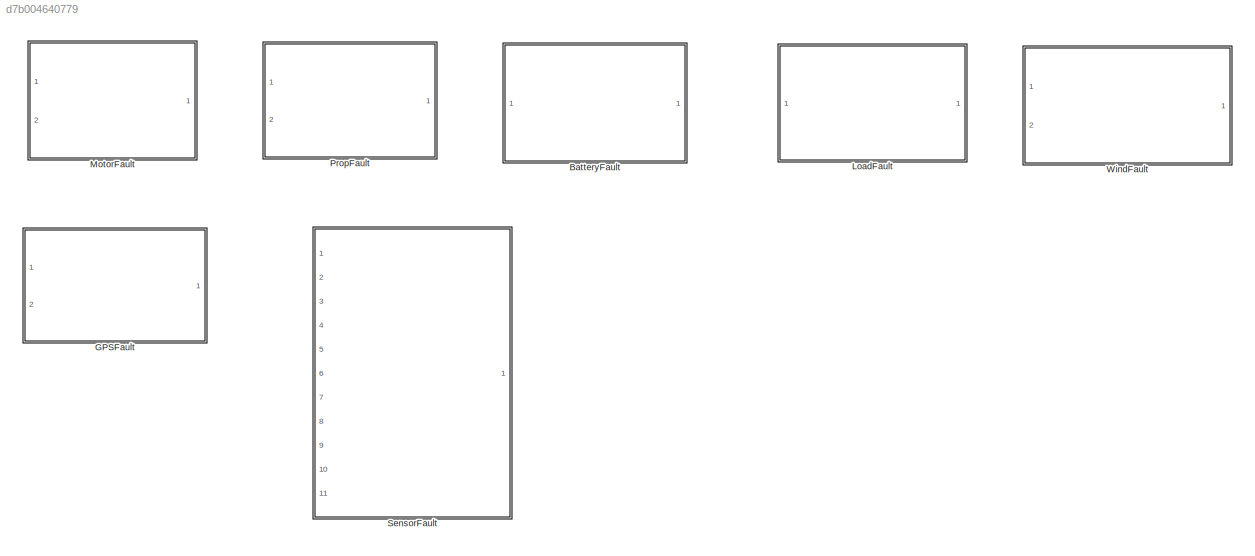
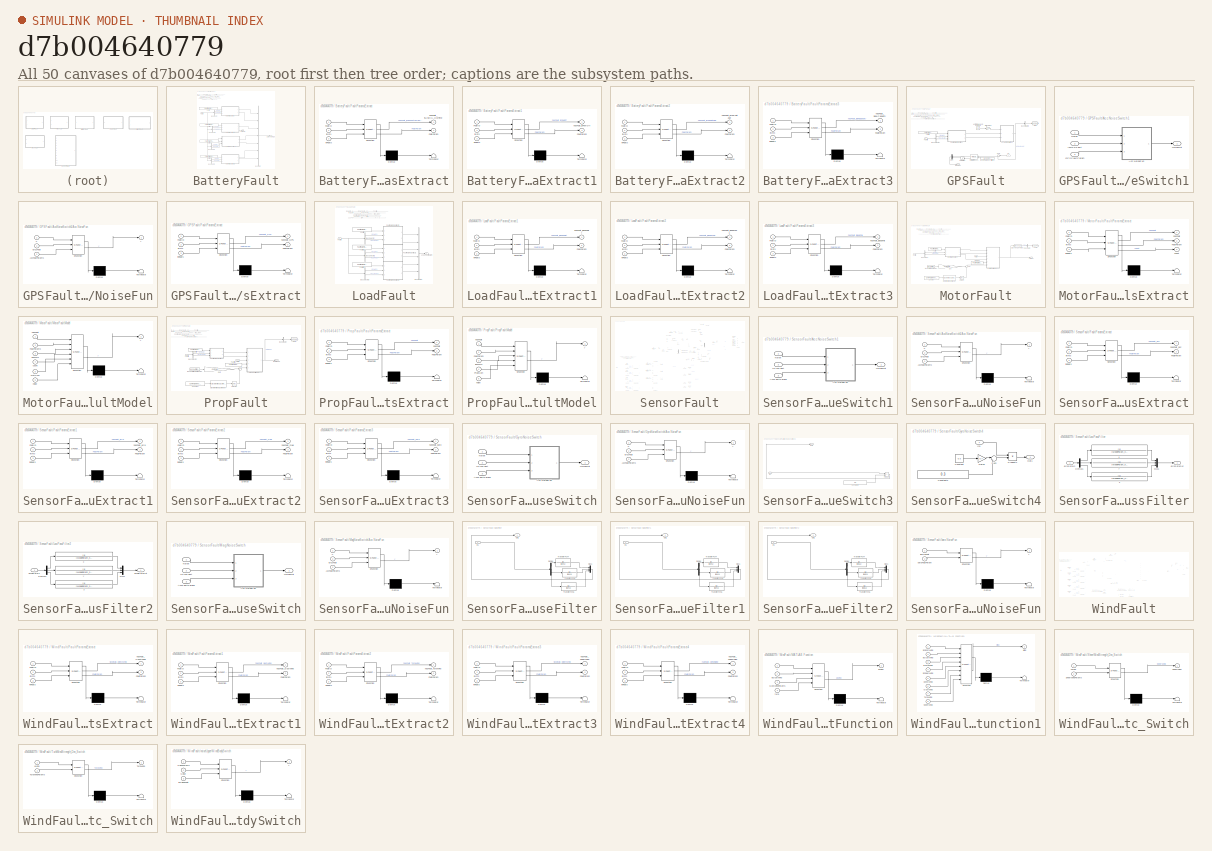
[diagram: thumbnail index - all 50 canvases of the model, root first then tree order]
MODEL slx_d7b004640779
KIND library
CONFIG AbsTol = auto
CONFIG EnableMultiTasking = off
CONFIG FixedStep = auto
CONFIG MaxStep = auto
CONFIG MinStep = auto
CONFIG RelTol = 1e-3
CONFIG SampleTimeConstraint = Unconstrained
CONFIG SolverName = VariableStepAuto
CONFIG StartTime = 0.0
CONFIG StopTime = 10.0
BLOCK [SubSystem] BatteryFault
  Ports = [1, 1]
  RequestExecContextInheritance = off
BLOCK [Outport] BatteryFault/BatteryFaultParam
BLOCK [BusCreator] BatteryFault/Bus Creator
  DisplayOption = bar
  InheritFromInputs = on
  Inputs = 7
  Ports = [7, 1]
BLOCK [BusSelector] BatteryFault/Bus Selector
  OutputSignals = inSILInts,inSILFloats
  Ports = [1, 2]
BLOCK [BusSelector] BatteryFault/Bus Selector1
  OutputSignals = inSILInts,inSILFloats
  Ports = [1, 2]
BLOCK [BusSelector] BatteryFault/Bus Selector2
  OutputSignals = inSILInts,inSILFloats
  Ports = [1, 2]
BLOCK [BusSelector] BatteryFault/Bus Selector3
  OutputSignals = inSILInts,inSILFloats
  Ports = [1, 2]
BLOCK [Constant] BatteryFault/FaultID
  OutDataTypeStr = int32
  Value = FaultParamStruct.UseCusTomHoverTimeFaultID
BLOCK [Constant] BatteryFault/FaultID1
  OutDataTypeStr = int32
  Value = FaultParamStruct.PowOffFaultID
BLOCK [Constant] BatteryFault/FaultID2
  OutDataTypeStr = int32
  Value = FaultParamStruct.LowVoltageFaultID
BLOCK [Constant] BatteryFault/FaultID3
  OutDataTypeStr = int32
  Value = FaultParamStruct.LowCapacityFaultID
BLOCK [Inport] BatteryFault/FaultIn
BLOCK [SubSystem] BatteryFault/FaultParamsExtract
  ErrorFcn = Stateflow.Translate.translate
  PermitHierarchicalResolution = ExplicitOnly
  Ports = [3, 2]
  RequestExecContextInheritance = off
  SFBlockType = MATLAB Function
  TreatAsAtomicUnit = on
BLOCK [Demux] BatteryFault/FaultParamsExtract/ Demux 
  Outputs = 1
  Ports = [1, 1]
BLOCK [S-Function] BatteryFault/FaultParamsExtract/ SFunction 
  EnableBusSupport = off
  FunctionName = sf_sfun
  PortCounts = [3 3]
  Ports = [3, 3]
  SFcnIsStateOwnerBlock = off
  SFunctionDeploymentMode = off
  Tag = Stateflow S-Function QuadModelLib2017b 4
BLOCK [Terminator] BatteryFault/FaultParamsExtract/ Terminator 
BLOCK [Inport] BatteryFault/FaultParamsExtract/FaultID
BLOCK [Outport] BatteryFault/FaultParamsExtract/FaultParam
  Port = 2
  VectorParamsAs1DForOutWhenUnconnected = off
BLOCK [Outport] BatteryFault/FaultParamsExtract/hasFault_isUseCustomHovTime
  VectorParamsAs1DForOutWhenUnconnected = off
BLOCK [Inport] BatteryFault/FaultParamsExtract/inFloats
  Port = 3
BLOCK [Inport] BatteryFault/FaultParamsExtract/inInts
  Port = 2
BLOCK [SubSystem] BatteryFault/FaultParamsExtract1
  ErrorFcn = Stateflow.Translate.translate
  PermitHierarchicalResolution = ExplicitOnly
  Ports = [3, 2]
  RequestExecContextInheritance = off
  SFBlockType = MATLAB Function
  TreatAsAtomicUnit = on
BLOCK [Demux] BatteryFault/FaultParamsExtract1/ Demux 
  Outputs = 1
  Ports = [1, 1]
BLOCK [S-Function] BatteryFault/FaultParamsExtract1/ SFunction 
  EnableBusSupport = off
  FunctionName = sf_sfun
  PortCounts = [3 3]
  Ports = [3, 3]
  SFcnIsStateOwnerBlock = off
  SFunctionDeploymentMode = off
  Tag = Stateflow S-Function QuadModelLib2017b 35
BLOCK [Terminator] BatteryFault/FaultParamsExtract1/ Terminator 
BLOCK [Inport] BatteryFault/FaultParamsExtract1/FaultID
BLOCK [Outport] BatteryFault/FaultParamsExtract1/FaultParam
  Port = 2
  VectorParamsAs1DForOutWhenUnconnected = off
BLOCK [Outport] BatteryFault/FaultParamsExtract1/hasFault_isPowOff
  VectorParamsAs1DForOutWhenUnconnected = off
BLOCK [Inport] BatteryFault/FaultParamsExtract1/inFloats
  Port = 3
BLOCK [Inport] BatteryFault/FaultParamsExtract1/inInts
  Port = 2
BLOCK [SubSystem] BatteryFault/FaultParamsExtract2
  ErrorFcn = Stateflow.Translate.translate
  PermitHierarchicalResolution = ExplicitOnly
  Ports = [3, 2]
  RequestExecContextInheritance = off
  SFBlockType = MATLAB Function
  TreatAsAtomicUnit = on
BLOCK [Demux] BatteryFault/FaultParamsExtract2/ Demux 
  Outputs = 1
  Ports = [1, 1]
BLOCK [S-Function] BatteryFault/FaultParamsExtract2/ SFunction 
  EnableBusSupport = off
  FunctionName = sf_sfun
  PortCounts = [3 3]
  Ports = [3, 3]
  SFcnIsStateOwnerBlock = off
  SFunctionDeploymentMode = off
  Tag = Stateflow S-Function QuadModelLib2017b 54
BLOCK [Terminator] BatteryFault/FaultParamsExtract2/ Terminator 
BLOCK [Inport] BatteryFault/FaultParamsExtract2/FaultID
BLOCK [Outport] BatteryFault/FaultParamsExtract2/FaultParam
  Port = 2
  VectorParamsAs1DForOutWhenUnconnected = off
BLOCK [Outport] BatteryFault/FaultParamsExtract2/hasFault_isLowVoltage
  VectorParamsAs1DForOutWhenUnconnected = off
BLOCK [Inport] BatteryFault/FaultParamsExtract2/inFloats
  Port = 3
BLOCK [Inport] BatteryFault/FaultParamsExtract2/inInts
  Port = 2
BLOCK [SubSystem] BatteryFault/FaultParamsExtract3
  ErrorFcn = Stateflow.Translate.translate
  PermitHierarchicalResolution = ExplicitOnly
  Ports = [3, 2]
  RequestExecContextInheritance = off
  SFBlockType = MATLAB Function
  TreatAsAtomicUnit = on
BLOCK [Demux] BatteryFault/FaultParamsExtract3/ Demux 
  Outputs = 1
  Ports = [1, 1]
BLOCK [S-Function] BatteryFault/FaultParamsExtract3/ SFunction 
  EnableBusSupport = off
  FunctionName = sf_sfun
  PortCounts = [3 3]
  Ports = [3, 3]
  SFcnIsStateOwnerBlock = off
  SFunctionDeploymentMode = off
  Tag = Stateflow S-Function QuadModelLib2017b 55
BLOCK [Terminator] BatteryFault/FaultParamsExtract3/ Terminator 
BLOCK [Inport] BatteryFault/FaultParamsExtract3/FaultID
BLOCK [Outport] BatteryFault/FaultParamsExtract3/FaultParam
  Port = 2
  VectorParamsAs1DForOutWhenUnconnected = off
BLOCK [Outport] BatteryFault/FaultParamsExtract3/hasFault_islowCapacity
  VectorParamsAs1DForOutWhenUnconnected = off
BLOCK [Inport] BatteryFault/FaultParamsExtract3/inFloats
  Port = 3
BLOCK [Inport] BatteryFault/FaultParamsExtract3/inInts
  Port = 2
BLOCK [Terminator] BatteryFault/Terminator1
BLOCK [SubSystem] GPSFault
  Ports = [2, 1]
  RequestExecContextInheritance = off
BLOCK [SubSystem] GPSFault/AccNoiseSwitch1
  Ports = [3, 1]
  RequestExecContextInheritance = off
BLOCK [SubSystem] GPSFault/AccNoiseSwitch1/Acc NoiseFun
  ErrorFcn = Stateflow.Translate.translate
  PermitHierarchicalResolution = ExplicitOnly
  Ports = [3, 1]
  RequestExecContextInheritance = off
  SFBlockType = MATLAB Function
  TreatAsAtomicUnit = on
BLOCK [Demux] GPSFault/AccNoiseSwitch1/Acc NoiseFun/ Demux 
  Outputs = 1
  Ports = [1, 1]
BLOCK [S-Function] GPSFault/AccNoiseSwitch1/Acc NoiseFun/ SFunction 
  EnableBusSupport = off
  FunctionName = sf_sfun
  PortCounts = [3 2]
  Ports = [3, 2]
  SFcnIsStateOwnerBlock = off
  SFunctionDeploymentMode = off
  Tag = Stateflow S-Function QuadModelLib2017b 62
BLOCK [Terminator] GPSFault/AccNoiseSwitch1/Acc NoiseFun/ Terminator 
BLOCK [Inport] GPSFault/AccNoiseSwitch1/Acc NoiseFun/AccFaultParams
  Port = 3
BLOCK [Inport] GPSFault/AccNoiseSwitch1/Acc NoiseFun/isAccFault
  Port = 2
BLOCK [Inport] GPSFault/AccNoiseSwitch1/Acc NoiseFun/u
BLOCK [Outport] GPSFault/AccNoiseSwitch1/Acc NoiseFun/y
BLOCK [Inport] GPSFault/AccNoiseSwitch1/GPSFaultParam
  Port = 3
BLOCK [Inport] GPSFault/AccNoiseSwitch1/Noise
BLOCK [Outport] GPSFault/AccNoiseSwitch1/NoiseOut
  VectorParamsAs1DForOutWhenUnconnected = off
BLOCK [Inport] GPSFault/AccNoiseSwitch1/isGPSFault
  Port = 2
BLOCK [Gain] GPSFault/BiasGain2
  Gain = 0.2
BLOCK [BusCreator] GPSFault/Bus Creator2
  DisplayOption = bar
  InheritFromInputs = on
  Inputs = 1
  Ports = [1, 1]
BLOCK [BusSelector] GPSFault/Bus Selector
  OutputSignals = inSILInts,inSILFloats
  Ports = [1, 2]
BLOCK [Constant] GPSFault/FaultID
  OutDataTypeStr = int32
  Value = FaultParamStruct.GPSNoiseFaultID
BLOCK [Inport] GPSFault/FaultIn
  Port = 2
BLOCK [SubSystem] GPSFault/FaultParamsExtract
  ErrorFcn = Stateflow.Translate.translate
  PermitHierarchicalResolution = ExplicitOnly
  Ports = [3, 2]
  RequestExecContextInheritance = off
  SFBlockType = MATLAB Function
  TreatAsAtomicUnit = on
BLOCK [Demux] GPSFault/FaultParamsExtract/ Demux 
  Outputs = 1
  Ports = [1, 1]
BLOCK [S-Function] GPSFault/FaultParamsExtract/ SFunction 
  EnableBusSupport = off
  FunctionName = sf_sfun
  PortCounts = [3 3]
  Ports = [3, 3]
  SFcnIsStateOwnerBlock = off
  SFunctionDeploymentMode = off
  Tag = Stateflow S-Function QuadModelLib2017b 46
BLOCK [Terminator] GPSFault/FaultParamsExtract/ Terminator 
BLOCK [Inport] GPSFault/FaultParamsExtract/FaultID
BLOCK [Outport] GPSFault/FaultParamsExtract/FaultParam
  Port = 2
  VectorParamsAs1DForOutWhenUnconnected = off
BLOCK [Outport] GPSFault/FaultParamsExtract/hasFault_GPS
  VectorParamsAs1DForOutWhenUnconnected = off
BLOCK [Inport] GPSFault/FaultParamsExtract/inFloats
  Port = 3
BLOCK [Inport] GPSFault/FaultParamsExtract/inInts
  Port = 2
BLOCK [Reference] GPSFault/Flat Earth to LLA  REF=aerolibtransform2/Flat Earth to LLA
  Ports = [2, 2]
  SourceBlock = aerolibtransform2/Flat Earth to LLA
  SourceProductBaseCode = AE
  SourceType = Flat Earth to LLA
BLOCK [Outport] GPSFault/GPSOut
BLOCK [Goto] GPSFault/Goto
  GotoTag = is123548
  TagVisibility = global
BLOCK [Constant] GPSFault/ModelParam.envAltitude
  Value = ModelParam_envAltitude
BLOCK [Mux] GPSFault/Mux
  DisplayOption = bar
  Inputs = 2
  Ports = [2, 1]
BLOCK [Saturate] GPSFault/Saturation
  LowerLimit = 0
  UpperLimit = 100000
BLOCK [Sum] GPSFault/Sum
  Inputs = |++
  Ports = [2, 1]
BLOCK [UniformRandomNumber] GPSFault/Uniform Random Number5
  Maximum = [1,1,2]
  Minimum = [-1,-1,-2]
  SampleTime = ModelParam_noiseGPSSampTime
  Seed = [1452,787,69]
BLOCK [Inport] GPSFault/Xe
BLOCK [SubSystem] LoadFault
  Ports = [1, 1]
  RequestExecContextInheritance = off
BLOCK [BusCreator] LoadFault/Bus Creator
  DisplayOption = bar
  InheritFromInputs = on
  Inputs = 6
  Ports = [6, 1]
BLOCK [BusSelector] LoadFault/Bus Selector
  OutputSignals = inSILInts,inSILFloats
  Ports = [1, 2]
BLOCK [BusSelector] LoadFault/Bus Selector2
  OutputSignals = inSILInts,inSILFloats
  Ports = [1, 2]
BLOCK [BusSelector] LoadFault/Bus Selector3
  OutputSignals = inSILInts,inSILFloats
  Ports = [1, 2]
BLOCK [Constant] LoadFault/FaultID
  OutDataTypeStr = int32
  Value = FaultParamStruct.LoadFallFaultID
BLOCK [Constant] LoadFault/FaultID1
  OutDataTypeStr = int32
  Value = FaultParamStruct.LoadShiftFaultID
BLOCK [Constant] LoadFault/FaultID2
  OutDataTypeStr = int32
  Value = FaultParamStruct.LoadLeakFaultID
BLOCK [Inport] LoadFault/FaultIn
BLOCK [SubSystem] LoadFault/FaultParamsExtract1
  ErrorFcn = Stateflow.Translate.translate
  PermitHierarchicalResolution = ExplicitOnly
  Ports = [3, 2]
  RequestExecContextInheritance = off
  SFBlockType = MATLAB Function
  TreatAsAtomicUnit = on
BLOCK [Demux] LoadFault/FaultParamsExtract1/ Demux 
  Outputs = 1
  Ports = [1, 1]
BLOCK [S-Function] LoadFault/FaultParamsExtract1/ SFunction 
  EnableBusSupport = off
  FunctionName = sf_sfun
  PortCounts = [3 3]
  Ports = [3, 3]
  SFcnIsStateOwnerBlock = off
  SFunctionDeploymentMode = off
  Tag = Stateflow S-Function QuadModelLib2017b 45
BLOCK [Terminator] LoadFault/FaultParamsExtract1/ Terminator 
BLOCK [Inport] LoadFault/FaultParamsExtract1/FaultID
BLOCK [Outport] LoadFault/FaultParamsExtract1/FaultParam
  Port = 2
  VectorParamsAs1DForOutWhenUnconnected = off
BLOCK [Outport] LoadFault/FaultParamsExtract1/hasFault_isloadShift
  VectorParamsAs1DForOutWhenUnconnected = off
BLOCK [Inport] LoadFault/FaultParamsExtract1/inFloats
  Port = 3
BLOCK [Inport] LoadFault/FaultParamsExtract1/inInts
  Port = 2
BLOCK [SubSystem] LoadFault/FaultParamsExtract2
  ErrorFcn = Stateflow.Translate.translate
  PermitHierarchicalResolution = ExplicitOnly
  Ports = [3, 2]
  RequestExecContextInheritance = off
  SFBlockType = MATLAB Function
  TreatAsAtomicUnit = on
BLOCK [Demux] LoadFault/FaultParamsExtract2/ Demux 
  Outputs = 1
  Ports = [1, 1]
BLOCK [S-Function] LoadFault/FaultParamsExtract2/ SFunction 
  EnableBusSupport = off
  FunctionName = sf_sfun
  PortCounts = [3 3]
  Ports = [3, 3]
  SFcnIsStateOwnerBlock = off
  SFunctionDeploymentMode = off
  Tag = Stateflow S-Function QuadModelLib2017b 57
BLOCK [Terminator] LoadFault/FaultParamsExtract2/ Terminator 
BLOCK [Inport] LoadFault/FaultParamsExtract2/FaultID
BLOCK [Outport] LoadFault/FaultParamsExtract2/FaultParam
  Port = 2
  VectorParamsAs1DForOutWhenUnconnected = off
BLOCK [Outport] LoadFault/FaultParamsExtract2/hasFault_isloadLeak
  VectorParamsAs1DForOutWhenUnconnected = off
BLOCK [Inport] LoadFault/FaultParamsExtract2/inFloats
  Port = 3
BLOCK [Inport] LoadFault/FaultParamsExtract2/inInts
  Port = 2
BLOCK [SubSystem] LoadFault/FaultParamsExtract3
  ErrorFcn = Stateflow.Translate.translate
  PermitHierarchicalResolution = ExplicitOnly
  Ports = [3, 2]
  RequestExecContextInheritance = off
  SFBlockType = MATLAB Function
  TreatAsAtomicUnit = on
BLOCK [Demux] LoadFault/FaultParamsExtract3/ Demux 
  Outputs = 1
  Ports = [1, 1]
BLOCK [S-Function] LoadFault/FaultParamsExtract3/ SFunction 
  EnableBusSupport = off
  FunctionName = sf_sfun
  PortCounts = [3 3]
  Ports = [3, 3]
  SFcnIsStateOwnerBlock = off
  SFunctionDeploymentMode = off
  Tag = Stateflow S-Function QuadModelLib2017b 56
BLOCK [Terminator] LoadFault/FaultParamsExtract3/ Terminator 
BLOCK [Inport] LoadFault/FaultParamsExtract3/FaultID
BLOCK [Outport] LoadFault/FaultParamsExtract3/FaultParam
  Port = 2
  VectorParamsAs1DForOutWhenUnconnected = off
BLOCK [Outport] LoadFault/FaultParamsExtract3/hasFault_isloadFall
  VectorParamsAs1DForOutWhenUnconnected = off
BLOCK [Inport] LoadFault/FaultParamsExtract3/inFloats
  Port = 3
BLOCK [Inport] LoadFault/FaultParamsExtract3/inInts
  Port = 2
BLOCK [Outport] LoadFault/LoadFaultParam
BLOCK [SubSystem] MotorFault
  Ports = [2, 1]
  RequestExecContextInheritance = off
BLOCK [Reference] MotorFault/Band-Limited White Noise  REF=simulink/Sources/Band-Limited
White Noise
  Ports = [0, 1]
  SourceBlock = simulink/Sources/Band-Limited\nWhite Noise
  SourceProductBaseCode = SL
  SourceType = Band-Limited White Noise.
BLOCK [BusCreator] MotorFault/Bus Creator
  DisplayOption = bar
  InheritFromInputs = on
  Inputs = 1
  Ports = [1, 1]
BLOCK [BusSelector] MotorFault/Bus Selector
  OutputSignals = inSILInts,inSILFloats
  Ports = [1, 2]
BLOCK [Constant] MotorFault/Constant
  Value = ComParamVect.FaultInParams(2)
BLOCK [DataTypeConversion] MotorFault/Data Type Conversion1
  OutDataTypeStr = double
  RndMeth = Floor
  SaturateOnIntegerOverflow = off
BLOCK [Reference] MotorFault/Discrete Wind Gust Model  REF=aerolibwind2/Discrete Wind Gust Model
  Ports = [1, 1]
  SourceBlock = aerolibwind2/Discrete Wind Gust Model
  SourceProductBaseCode = AE
  SourceType = Discrete Wind Gust Model
BLOCK [Constant] MotorFault/FaultID
  OutDataTypeStr = int32
  Value = FaultParamStruct.FaultID
BLOCK [Inport] MotorFault/FaultIn
BLOCK [SubSystem] MotorFault/FaultParamsExtract
  ErrorFcn = Stateflow.Translate.translate
  PermitHierarchicalResolution = ExplicitOnly
  Ports = [3, 3]
  RequestExecContextInheritance = off
  SFBlockType = MATLAB Function
  TreatAsAtomicUnit = on
BLOCK [Demux] MotorFault/FaultParamsExtract/ Demux 
  Outputs = 1
  Ports = [1, 1]
BLOCK [S-Function] MotorFault/FaultParamsExtract/ SFunction 
  EnableBusSupport = off
  FunctionName = sf_sfun
  PortCounts = [3 4]
  Ports = [3, 4]
  SFcnIsStateOwnerBlock = off
  SFunctionDeploymentMode = off
  Tag = Stateflow S-Function QuadModelLib2017b 34
BLOCK [Terminator] MotorFault/FaultParamsExtract/ Terminator 
BLOCK [Inport] MotorFault/FaultParamsExtract/FaultID
BLOCK [Outport] MotorFault/FaultParamsExtract/FaultParam
  Port = 2
  VectorParamsAs1DForOutWhenUnconnected = off
BLOCK [Outport] MotorFault/FaultParamsExtract/count
  Port = 3
BLOCK [Outport] MotorFault/FaultParamsExtract/hasFault
  VectorParamsAs1DForOutWhenUnconnected = off
BLOCK [Inport] MotorFault/FaultParamsExtract/inFloats
  Port = 3
BLOCK [Inport] MotorFault/FaultParamsExtract/inInts
  Port = 2
BLOCK [Gain] MotorFault/Gain
  Gain = ComParamVect.FaultInParams(1)
BLOCK [Goto] MotorFault/Goto
  GotoTag = is123450
  TagVisibility = global
BLOCK [SubSystem] MotorFault/MotorFaultModel
  ErrorFcn = Stateflow.Translate.translate
  PermitHierarchicalResolution = ExplicitOnly
  Ports = [6, 1]
  RequestExecContextInheritance = off
  SFBlockType = MATLAB Function
  TreatAsAtomicUnit = on
BLOCK [Demux] MotorFault/MotorFaultModel/ Demux 
  Outputs = 1
  Ports = [1, 1]
BLOCK [S-Function] MotorFault/MotorFaultModel/ SFunction 
  EnableBusSupport = off
  FunctionName = sf_sfun
  PortCounts = [6 2]
  Ports = [6, 2]
  SFcnIsStateOwnerBlock = off
  SFunctionDeploymentMode = off
  Tag = Stateflow S-Function QuadModelLib2017b 51
BLOCK [Terminator] MotorFault/MotorFaultModel/ Terminator 
BLOCK [Inport] MotorFault/MotorFaultModel/FaultParams
  Port = 2
BLOCK [Inport] MotorFault/MotorFaultModel/count
  Port = 4
BLOCK [Inport] MotorFault/MotorFaultModel/hasFault
BLOCK [Inport] MotorFault/MotorFaultModel/inPWMs
  Port = 3
BLOCK [Inport] MotorFault/MotorFaultModel/motNum
  Port = 5
BLOCK [Inport] MotorFault/MotorFaultModel/noise
  Port = 6
BLOCK [Outport] MotorFault/MotorFaultModel/y
  VectorParamsAs1DForOutWhenUnconnected = off
BLOCK [Constant] MotorFault/MotorNum
  OutDataTypeStr = int32
  Value = FaultParamStruct.MotorNum
BLOCK [Inport] MotorFault/PWMIn
  Port = 2
BLOCK [Outport] MotorFault/PWMOut
BLOCK [Selector] MotorFault/Selector
  IndexOptions = Index vector (dialog)
  Indices = [1]
  InputPortWidth = 3
  OutputSizes = 1
  Ports = [1, 1]
BLOCK [Sum] MotorFault/Sum
  Inputs = |++
  Ports = [2, 1]
BLOCK [SubSystem] PropFault
  Ports = [2, 1]
  RequestExecContextInheritance = off
BLOCK [Reference] PropFault/Band-Limited White Noise  REF=simulink/Sources/Band-Limited
White Noise
  Ports = [0, 1]
  SourceBlock = simulink/Sources/Band-Limited\nWhite Noise
  SourceProductBaseCode = SL
  SourceType = Band-Limited White Noise.
BLOCK [BusCreator] PropFault/Bus Creator
  DisplayOption = bar
  InheritFromInputs = on
  Inputs = 1
  Ports = [1, 1]
BLOCK [BusSelector] PropFault/Bus Selector
  OutputSignals = inSILInts,inSILFloats
  Ports = [1, 2]
BLOCK [Constant] PropFault/Constant
  Value = ComParamVect.FaultInParams(2)
BLOCK [Reference] PropFault/Discrete Wind Gust Model  REF=aerolibwind2/Discrete Wind Gust Model
  Ports = [1, 1]
  SourceBlock = aerolibwind2/Discrete Wind Gust Model
  SourceProductBaseCode = AE
  SourceType = Discrete Wind Gust Model
BLOCK [Constant] PropFault/FaultID
  OutDataTypeStr = int32
  Value = FaultParamStruct.FaultID
BLOCK [Constant] PropFault/FaultID1
  OutDataTypeStr = int32
  Value = FaultParamStruct.PropNum
BLOCK [Inport] PropFault/FaultIn
BLOCK [SubSystem] PropFault/FaultParamsExtract
  ErrorFcn = Stateflow.Translate.translate
  PermitHierarchicalResolution = ExplicitOnly
  Ports = [3, 2]
  RequestExecContextInheritance = off
  SFBlockType = MATLAB Function
  TreatAsAtomicUnit = on
BLOCK [Demux] PropFault/FaultParamsExtract/ Demux 
  Outputs = 1
  Ports = [1, 1]
BLOCK [S-Function] PropFault/FaultParamsExtract/ SFunction 
  EnableBusSupport = off
  FunctionName = sf_sfun
  PortCounts = [3 3]
  Ports = [3, 3]
  SFcnIsStateOwnerBlock = off
  SFunctionDeploymentMode = off
  Tag = Stateflow S-Function QuadModelLib2017b 52
BLOCK [Terminator] PropFault/FaultParamsExtract/ Terminator 
BLOCK [Inport] PropFault/FaultParamsExtract/FaultID
BLOCK [Outport] PropFault/FaultParamsExtract/FaultParam
  Port = 2
  VectorParamsAs1DForOutWhenUnconnected = off
BLOCK [Outport] PropFault/FaultParamsExtract/hasFault
  VectorParamsAs1DForOutWhenUnconnected = off
BLOCK [Inport] PropFault/FaultParamsExtract/inFloats
  Port = 3
BLOCK [Inport] PropFault/FaultParamsExtract/inInts
  Port = 2
BLOCK [Gain] PropFault/Gain
  Gain = ComParamVect.FaultInParams(1)
BLOCK [Goto] PropFault/Goto
  GotoTag = is123451
  TagVisibility = global
BLOCK [Outport] PropFault/MotorRads
  VectorParamsAs1DForOutWhenUnconnected = off
BLOCK [Inport] PropFault/PWMIn
  Port = 2
BLOCK [SubSystem] PropFault/PropFaultModel
  ErrorFcn = Stateflow.Translate.translate
  PermitHierarchicalResolution = ExplicitOnly
  Ports = [5, 1]
  RequestExecContextInheritance = off
  SFBlockType = MATLAB Function
  TreatAsAtomicUnit = on
BLOCK [Demux] PropFault/PropFaultModel/ Demux 
  Outputs = 1
  Ports = [1, 1]
BLOCK [S-Function] PropFault/PropFaultModel/ SFunction 
  EnableBusSupport = off
  FunctionName = sf_sfun
  PortCounts = [5 2]
  Ports = [5, 2]
  SFcnIsStateOwnerBlock = off
  SFunctionDeploymentMode = off
  Tag = Stateflow S-Function QuadModelLib2017b 53
BLOCK [Terminator] PropFault/PropFaultModel/ Terminator 
BLOCK [Inport] PropFault/PropFaultModel/FaultParam
  Port = 2
BLOCK [Inport] PropFault/PropFaultModel/PropNum
  Port = 4
BLOCK [Inport] PropFault/PropFaultModel/hasFault
BLOCK [Inport] PropFault/PropFaultModel/inPWMs
  Port = 3
BLOCK [Inport] PropFault/PropFaultModel/noise
  Port = 5
BLOCK [Outport] PropFault/PropFaultModel/y
  VectorParamsAs1DForOutWhenUnconnected = off
BLOCK [Selector] PropFault/Selector
  IndexOptions = Index vector (dialog)
  Indices = [1]
  InputPortWidth = 3
  OutputSizes = 1
  Ports = [1, 1]
BLOCK [Sum] PropFault/Sum
  Inputs = |++
  Ports = [2, 1]
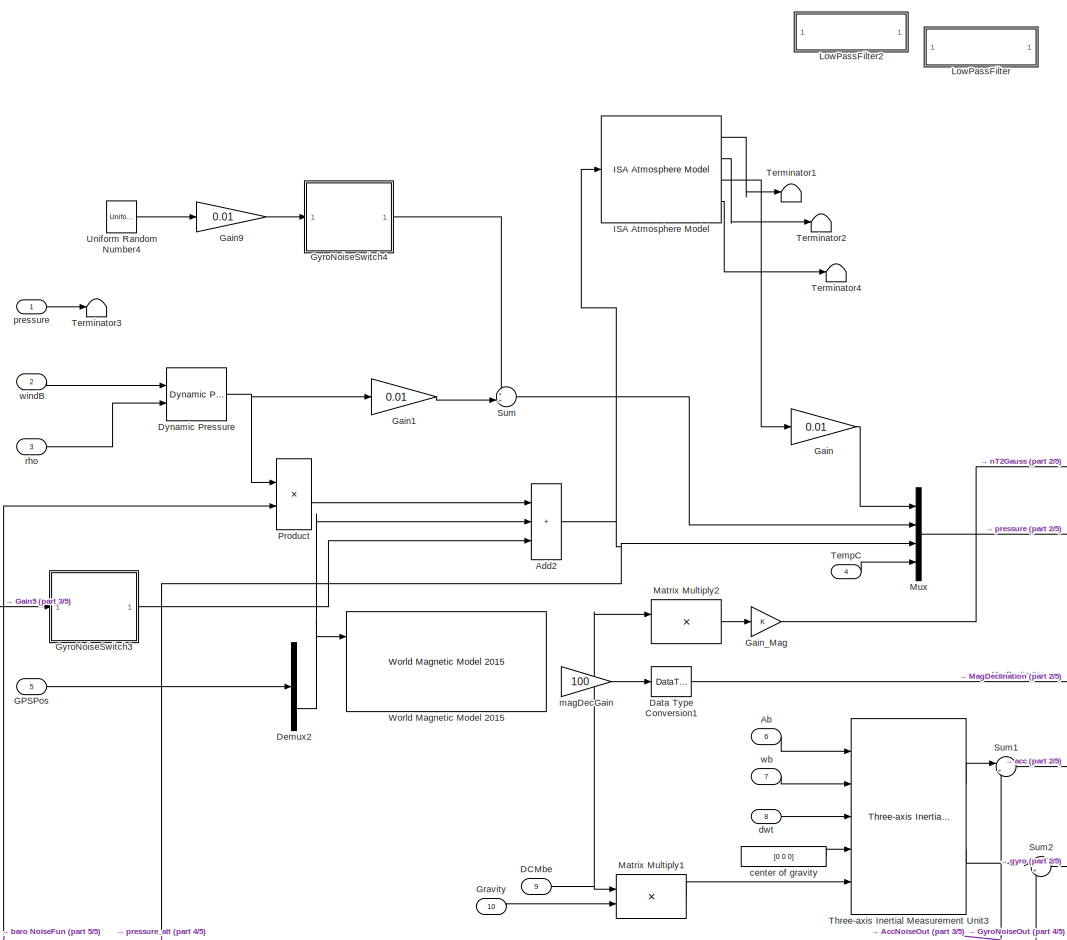
[diagram: SensorFault - part 1/5, top center region]
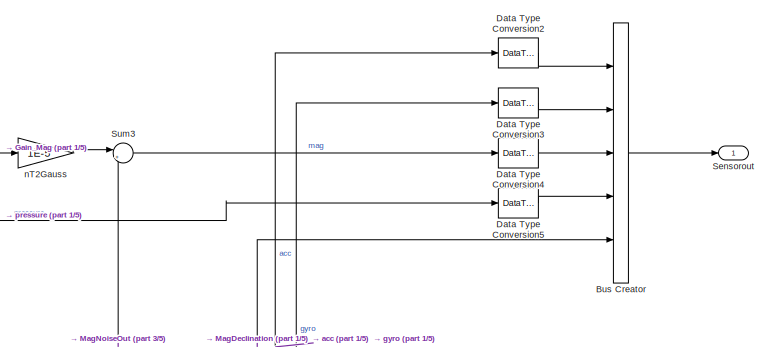
[diagram: SensorFault - part 2/5, top right region]
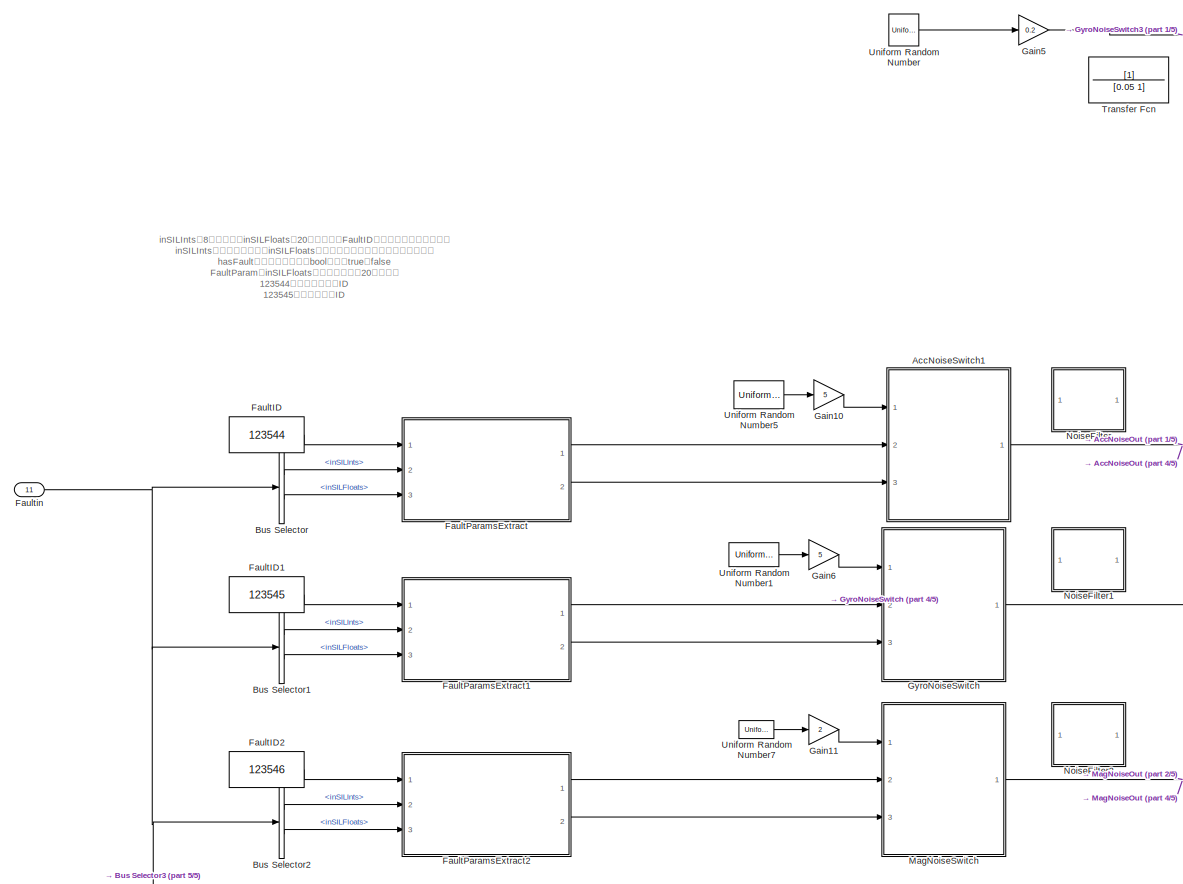
[diagram: SensorFault - part 3/5, middle left region]
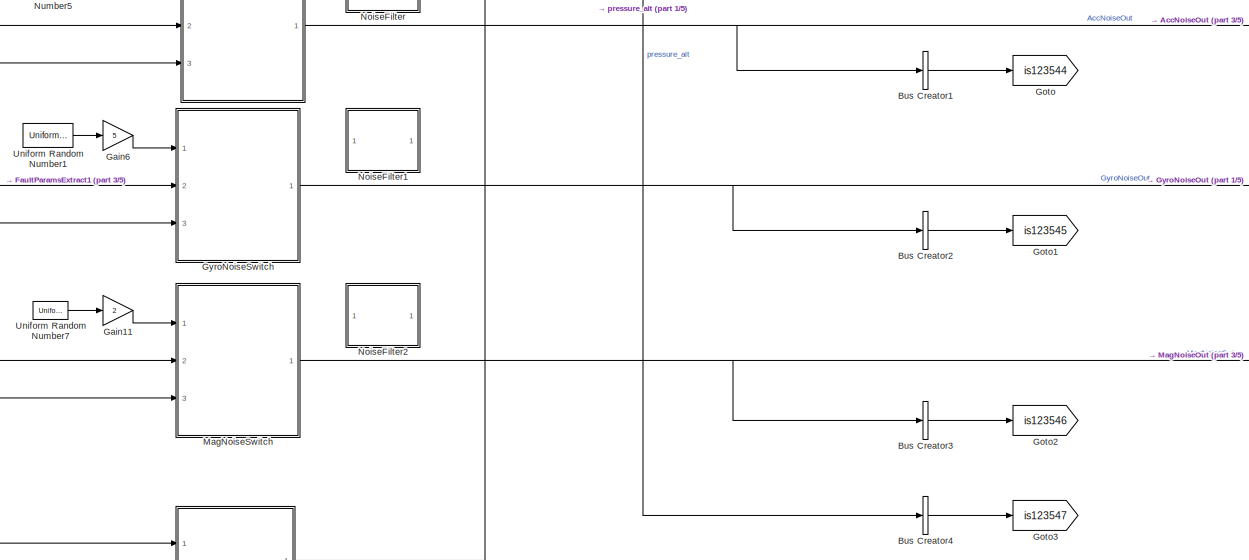
[diagram: SensorFault - part 4/5, bottom center region]
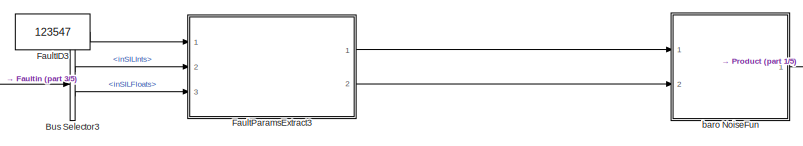
[diagram: SensorFault - part 5/5, bottom left region]
BLOCK [SubSystem] SensorFault
  Ports = [11, 1]
  RequestExecContextInheritance = off
BLOCK [Inport] SensorFault/Ab
  Port = 6
BLOCK [SubSystem] SensorFault/AccNoiseSwitch1
  Ports = [3, 1]
  RequestExecContextInheritance = off
BLOCK [SubSystem] SensorFault/AccNoiseSwitch1/Acc NoiseFun
  ErrorFcn = Stateflow.Translate.translate
  PermitHierarchicalResolution = ExplicitOnly
  Ports = [3, 1]
  RequestExecContextInheritance = off
  SFBlockType = MATLAB Function
  TreatAsAtomicUnit = on
BLOCK [Demux] SensorFault/AccNoiseSwitch1/Acc NoiseFun/ Demux 
  Outputs = 1
  Ports = [1, 1]
BLOCK [S-Function] SensorFault/AccNoiseSwitch1/Acc NoiseFun/ SFunction 
  EnableBusSupport = off
  FunctionName = sf_sfun
  PortCounts = [3 2]
  Ports = [3, 2]
  SFcnIsStateOwnerBlock = off
  SFunctionDeploymentMode = off
  Tag = Stateflow S-Function QuadModelLib2017b 41
BLOCK [Terminator] SensorFault/AccNoiseSwitch1/Acc NoiseFun/ Terminator 
BLOCK [Inport] SensorFault/AccNoiseSwitch1/Acc NoiseFun/AccFaultParams
  Port = 3
BLOCK [Inport] SensorFault/AccNoiseSwitch1/Acc NoiseFun/isAccFault
  Port = 2
BLOCK [Inport] SensorFault/AccNoiseSwitch1/Acc NoiseFun/u
BLOCK [Outport] SensorFault/AccNoiseSwitch1/Acc NoiseFun/y
BLOCK [Inport] SensorFault/AccNoiseSwitch1/AccFaultParam
  Port = 3
BLOCK [Inport] SensorFault/AccNoiseSwitch1/Noise
BLOCK [Outport] SensorFault/AccNoiseSwitch1/NoiseOut
  VectorParamsAs1DForOutWhenUnconnected = off
BLOCK [Inport] SensorFault/AccNoiseSwitch1/isAccFault
  Port = 2
BLOCK [Sum] SensorFault/Add2
  IconShape = rectangular
  Inputs = +++
  Ports = [3, 1]
BLOCK [BusCreator] SensorFault/Bus Creator
  DisplayOption = bar
  InheritFromInputs = on
  Inputs = 5
  Ports = [5, 1]
BLOCK [BusCreator] SensorFault/Bus Creator1
  DisplayOption = bar
  InheritFromInputs = on
  Inputs = 1
  Ports = [1, 1]
BLOCK [BusCreator] SensorFault/Bus Creator2
  DisplayOption = bar
  InheritFromInputs = on
  Inputs = 1
  Ports = [1, 1]
BLOCK [BusCreator] SensorFault/Bus Creator3
  DisplayOption = bar
  InheritFromInputs = on
  Inputs = 1
  Ports = [1, 1]
BLOCK [BusCreator] SensorFault/Bus Creator4
  DisplayOption = bar
  InheritFromInputs = on
  Inputs = 1
  Ports = [1, 1]
BLOCK [BusSelector] SensorFault/Bus Selector
  OutputSignals = inSILInts,inSILFloats
  Ports = [1, 2]
BLOCK [BusSelector] SensorFault/Bus Selector1
  OutputSignals = inSILInts,inSILFloats
  Ports = [1, 2]
BLOCK [BusSelector] SensorFault/Bus Selector2
  OutputSignals = inSILInts,inSILFloats
  Ports = [1, 2]
BLOCK [BusSelector] SensorFault/Bus Selector3
  OutputSignals = inSILInts,inSILFloats
  Ports = [1, 2]
BLOCK [Inport] SensorFault/DCMbe
  Port = 9
BLOCK [DataTypeConversion] SensorFault/Data Type Conversion1
  OutDataTypeStr = int16
  RndMeth = Floor
  SaturateOnIntegerOverflow = off
BLOCK [DataTypeConversion] SensorFault/Data Type Conversion2
  OutDataTypeStr = single
  RndMeth = Floor
  SaturateOnIntegerOverflow = off
BLOCK [DataTypeConversion] SensorFault/Data Type Conversion3
  OutDataTypeStr = single
  RndMeth = Floor
  SaturateOnIntegerOverflow = off
BLOCK [DataTypeConversion] SensorFault/Data Type Conversion4
  OutDataTypeStr = single
  RndMeth = Floor
  SaturateOnIntegerOverflow = off
BLOCK [DataTypeConversion] SensorFault/Data Type Conversion5
  OutDataTypeStr = single
  RndMeth = Floor
  SaturateOnIntegerOverflow = off
BLOCK [Demux] SensorFault/Demux2
  Outputs = 3
  Ports = [1, 3]
BLOCK [Reference] SensorFault/Dynamic Pressure  REF=aerolibasang/Dynamic Pressure
  Ports = [2, 1]
  SourceBlock = aerolibasang/Dynamic Pressure
  SourceProductBaseCode = AE
  SourceType = Dynamic Pressure
BLOCK [Constant] SensorFault/FaultID
  OutDataTypeStr = int32
  Value = 123544
BLOCK [Constant] SensorFault/FaultID1
  OutDataTypeStr = int32
  Value = 123545
BLOCK [Constant] SensorFault/FaultID2
  OutDataTypeStr = int32
  Value = 123546
BLOCK [Constant] SensorFault/FaultID3
  OutDataTypeStr = int32
  Value = 123547
BLOCK [SubSystem] SensorFault/FaultParamsExtract
  ErrorFcn = Stateflow.Translate.translate
  PermitHierarchicalResolution = ExplicitOnly
  Ports = [3, 2]
  RequestExecContextInheritance = off
  SFBlockType = MATLAB Function
  TreatAsAtomicUnit = on
BLOCK [Demux] SensorFault/FaultParamsExtract/ Demux 
  Outputs = 1
  Ports = [1, 1]
BLOCK [S-Function] SensorFault/FaultParamsExtract/ SFunction 
  EnableBusSupport = off
  FunctionName = sf_sfun
  PortCounts = [3 3]
  Ports = [3, 3]
  SFcnIsStateOwnerBlock = off
  SFunctionDeploymentMode = off
  Tag = Stateflow S-Function QuadModelLib2017b 8
BLOCK [Terminator] SensorFault/FaultParamsExtract/ Terminator 
BLOCK [Inport] SensorFault/FaultParamsExtract/FaultID
BLOCK [Outport] SensorFault/FaultParamsExtract/FaultParam
  Port = 2
  VectorParamsAs1DForOutWhenUnconnected = off
BLOCK [Outport] SensorFault/FaultParamsExtract/hasFault_acc
  VectorParamsAs1DForOutWhenUnconnected = off
BLOCK [Inport] SensorFault/FaultParamsExtract/inFloats
  Port = 3
BLOCK [Inport] SensorFault/FaultParamsExtract/inInts
  Port = 2
BLOCK [SubSystem] SensorFault/FaultParamsExtract1
  ErrorFcn = Stateflow.Translate.translate
  PermitHierarchicalResolution = ExplicitOnly
  Ports = [3, 2]
  RequestExecContextInheritance = off
  SFBlockType = MATLAB Function
  TreatAsAtomicUnit = on
BLOCK [Demux] SensorFault/FaultParamsExtract1/ Demux 
  Outputs = 1
  Ports = [1, 1]
BLOCK [S-Function] SensorFault/FaultParamsExtract1/ SFunction 
  EnableBusSupport = off
  FunctionName = sf_sfun
  PortCounts = [3 3]
  Ports = [3, 3]
  SFcnIsStateOwnerBlock = off
  SFunctionDeploymentMode = off
  Tag = Stateflow S-Function QuadModelLib2017b 11
BLOCK [Terminator] SensorFault/FaultParamsExtract1/ Terminator 
BLOCK [Inport] SensorFault/FaultParamsExtract1/FaultID
BLOCK [Outport] SensorFault/FaultParamsExtract1/FaultParam
  Port = 2
  VectorParamsAs1DForOutWhenUnconnected = off
BLOCK [Outport] SensorFault/FaultParamsExtract1/hasFault_gyro
  VectorParamsAs1DForOutWhenUnconnected = off
BLOCK [Inport] SensorFault/FaultParamsExtract1/inFloats
  Port = 3
BLOCK [Inport] SensorFault/FaultParamsExtract1/inInts
  Port = 2
BLOCK [SubSystem] SensorFault/FaultParamsExtract2
  ErrorFcn = Stateflow.Translate.translate
  PermitHierarchicalResolution = ExplicitOnly
  Ports = [3, 2]
  RequestExecContextInheritance = off
  SFBlockType = MATLAB Function
  TreatAsAtomicUnit = on
BLOCK [Demux] SensorFault/FaultParamsExtract2/ Demux 
  Outputs = 1
  Ports = [1, 1]
BLOCK [S-Function] SensorFault/FaultParamsExtract2/ SFunction 
  EnableBusSupport = off
  FunctionName = sf_sfun
  PortCounts = [3 3]
  Ports = [3, 3]
  SFcnIsStateOwnerBlock = off
  SFunctionDeploymentMode = off
  Tag = Stateflow S-Function QuadModelLib2017b 38
BLOCK [Terminator] SensorFault/FaultParamsExtract2/ Terminator 
BLOCK [Inport] SensorFault/FaultParamsExtract2/FaultID
BLOCK [Outport] SensorFault/FaultParamsExtract2/FaultParam
  Port = 2
  VectorParamsAs1DForOutWhenUnconnected = off
BLOCK [Outport] SensorFault/FaultParamsExtract2/hasFault_mag
  VectorParamsAs1DForOutWhenUnconnected = off
BLOCK [Inport] SensorFault/FaultParamsExtract2/inFloats
  Port = 3
BLOCK [Inport] SensorFault/FaultParamsExtract2/inInts
  Port = 2
BLOCK [SubSystem] SensorFault/FaultParamsExtract3
  ErrorFcn = Stateflow.Translate.translate
  PermitHierarchicalResolution = ExplicitOnly
  Ports = [3, 2]
  RequestExecContextInheritance = off
  SFBlockType = MATLAB Function
  TreatAsAtomicUnit = on
BLOCK [Demux] SensorFault/FaultParamsExtract3/ Demux 
  Outputs = 1
  Ports = [1, 1]
BLOCK [S-Function] SensorFault/FaultParamsExtract3/ SFunction 
  EnableBusSupport = off
  FunctionName = sf_sfun
  PortCounts = [3 3]
  Ports = [3, 3]
  SFcnIsStateOwnerBlock = off
  SFunctionDeploymentMode = off
  Tag = Stateflow S-Function QuadModelLib2017b 39
BLOCK [Terminator] SensorFault/FaultParamsExtract3/ Terminator 
BLOCK [Inport] SensorFault/FaultParamsExtract3/FaultID
BLOCK [Outport] SensorFault/FaultParamsExtract3/FaultParam
  Port = 2
  VectorParamsAs1DForOutWhenUnconnected = off
BLOCK [Outport] SensorFault/FaultParamsExtract3/hasFault_baro
  VectorParamsAs1DForOutWhenUnconnected = off
BLOCK [Inport] SensorFault/FaultParamsExtract3/inFloats
  Port = 3
BLOCK [Inport] SensorFault/FaultParamsExtract3/inInts
  Port = 2
BLOCK [Inport] SensorFault/Faultin
  Port = 11
BLOCK [Inport] SensorFault/GPSPos
  Port = 5
BLOCK [Gain] SensorFault/Gain
  Gain = 0.01
BLOCK [Gain] SensorFault/Gain1
  Gain = 0.01
BLOCK [Gain] SensorFault/Gain10
  Gain = 5
BLOCK [Gain] SensorFault/Gain11
  Gain = 2
BLOCK [Gain] SensorFault/Gain5
  Gain = 0.2
BLOCK [Gain] SensorFault/Gain6
  Gain = 5
BLOCK [Gain] SensorFault/Gain9
  Gain = 0.01
BLOCK [Gain] SensorFault/Gain_Mag
BLOCK [Goto] SensorFault/Goto
  GotoTag = is123544
  TagVisibility = global
BLOCK [Goto] SensorFault/Goto1
  GotoTag = is123545
  TagVisibility = global
BLOCK [Goto] SensorFault/Goto2
  GotoTag = is123546
  TagVisibility = global
BLOCK [Goto] SensorFault/Goto3
  GotoTag = is123547
  TagVisibility = global
BLOCK [Inport] SensorFault/Gravity
  Port = 10
BLOCK [SubSystem] SensorFault/GyroNoiseSwitch
  Ports = [3, 1]
  RequestExecContextInheritance = off
BLOCK [SubSystem] SensorFault/GyroNoiseSwitch/Acc NoiseFun
  ErrorFcn = Stateflow.Translate.translate
  PermitHierarchicalResolution = ExplicitOnly
  Ports = [3, 1]
  RequestExecContextInheritance = off
  SFBlockType = MATLAB Function
  TreatAsAtomicUnit = on
BLOCK [Demux] SensorFault/GyroNoiseSwitch/Acc NoiseFun/ Demux 
  Outputs = 1
  Ports = [1, 1]
BLOCK [S-Function] SensorFault/GyroNoiseSwitch/Acc NoiseFun/ SFunction 
  EnableBusSupport = off
  FunctionName = sf_sfun
  PortCounts = [3 2]
  Ports = [3, 2]
  SFcnIsStateOwnerBlock = off
  SFunctionDeploymentMode = off
  Tag = Stateflow S-Function QuadModelLib2017b 43
BLOCK [Terminator] SensorFault/GyroNoiseSwitch/Acc NoiseFun/ Terminator 
BLOCK [Inport] SensorFault/GyroNoiseSwitch/Acc NoiseFun/AccFaultParams
  Port = 3
BLOCK [Inport] SensorFault/GyroNoiseSwitch/Acc NoiseFun/isAccFault
  Port = 2
BLOCK [Inport] SensorFault/GyroNoiseSwitch/Acc NoiseFun/u
BLOCK [Outport] SensorFault/GyroNoiseSwitch/Acc NoiseFun/y
BLOCK [Inport] SensorFault/GyroNoiseSwitch/AccFaultParam
  Port = 3
BLOCK [Inport] SensorFault/GyroNoiseSwitch/Noise
BLOCK [Outport] SensorFault/GyroNoiseSwitch/NoiseOut
  VectorParamsAs1DForOutWhenUnconnected = off
BLOCK [Inport] SensorFault/GyroNoiseSwitch/isAccFault
  Port = 2
BLOCK [SubSystem] SensorFault/GyroNoiseSwitch3
  Ports = [1, 1]
  RequestExecContextInheritance = off
BLOCK [Constant] SensorFault/GyroNoiseSwitch3/Constant2
  Value = 0.3
BLOCK [Inport] SensorFault/GyroNoiseSwitch3/In1
BLOCK [Outport] SensorFault/GyroNoiseSwitch3/Out1
  VectorParamsAs1DForOutWhenUnconnected = off
BLOCK [Product] SensorFault/GyroNoiseSwitch3/Product4
  Ports = [2, 1]
BLOCK [SubSystem] SensorFault/GyroNoiseSwitch4
  Ports = [1, 1]
  RequestExecContextInheritance = off
BLOCK [Constant] SensorFault/GyroNoiseSwitch4/Constant
  Value = 0.5
BLOCK [Constant] SensorFault/GyroNoiseSwitch4/Constant2
  Value = 0.3
BLOCK [Gain] SensorFault/GyroNoiseSwitch4/Gain2
  Gain = 0.7
BLOCK [Inport] SensorFault/GyroNoiseSwitch4/In1
BLOCK [Outport] SensorFault/GyroNoiseSwitch4/Out1
  VectorParamsAs1DForOutWhenUnconnected = off
BLOCK [Product] SensorFault/GyroNoiseSwitch4/Product4
  Ports = [2, 1]
BLOCK [Sum] SensorFault/GyroNoiseSwitch4/Sum
  Inputs = |++
  Ports = [2, 1]
BLOCK [Reference] SensorFault/ISA Atmosphere Model  REF=aerolibatmos2/ISA Atmosphere Model
  Ports = [1, 4]
  SourceBlock = aerolibatmos2/ISA Atmosphere Model
  SourceProductBaseCode = AE
  SourceType = International Standard Atmosphere Model
BLOCK [SubSystem] SensorFault/LowPassFilter
  Commented = on
  Ports = [1, 1]
  RequestExecContextInheritance = off
BLOCK [Demux] SensorFault/LowPassFilter/Demux1
  Outputs = 3
  Ports = [1, 3]
BLOCK [Mux] SensorFault/LowPassFilter/Mux1
  DisplayOption = bar
  Inputs = 3
  Ports = [3, 1]
BLOCK [Inport] SensorFault/LowPassFilter/gyroDataIn
BLOCK [Outport] SensorFault/LowPassFilter/gyroDataOut
  VectorParamsAs1DForOutWhenUnconnected = off
BLOCK [TransferFcn] SensorFault/LowPassFilter/x
  Denominator = [ModelParam_noiseLowPassFilterCoeGyro 1]
BLOCK [TransferFcn] SensorFault/LowPassFilter/y
  Denominator = [ModelParam_noiseLowPassFilterCoeGyro 1]
BLOCK [TransferFcn] SensorFault/LowPassFilter/z
  Denominator = [ModelParam_noiseLowPassFilterCoeGyro 1]
BLOCK [SubSystem] SensorFault/LowPassFilter2
  Commented = on
  Ports = [1, 1]
  RequestExecContextInheritance = off
BLOCK [Demux] SensorFault/LowPassFilter2/Demux1
  Outputs = 3
  Ports = [1, 3]
BLOCK [Mux] SensorFault/LowPassFilter2/Mux1
  DisplayOption = bar
  Inputs = 3
  Ports = [3, 1]
BLOCK [Inport] SensorFault/LowPassFilter2/accelDataIn
BLOCK [Outport] SensorFault/LowPassFilter2/accelDataOut
  VectorParamsAs1DForOutWhenUnconnected = off
BLOCK [TransferFcn] SensorFault/LowPassFilter2/x
  Denominator = [ModelParam_noiseLowPassFilterCoeAccel 1]
BLOCK [TransferFcn] SensorFault/LowPassFilter2/y
  Denominator = [ModelParam_noiseLowPassFilterCoeAccel 1]
BLOCK [TransferFcn] SensorFault/LowPassFilter2/z
  Denominator = [ModelParam_noiseLowPassFilterCoeAccel 1]
BLOCK [SubSystem] SensorFault/MagNoiseSwitch
  Ports = [3, 1]
  RequestExecContextInheritance = off
BLOCK [SubSystem] SensorFault/MagNoiseSwitch/Acc NoiseFun
  ErrorFcn = Stateflow.Translate.translate
  PermitHierarchicalResolution = ExplicitOnly
  Ports = [3, 1]
  RequestExecContextInheritance = off
  SFBlockType = MATLAB Function
  TreatAsAtomicUnit = on
BLOCK [Demux] SensorFault/MagNoiseSwitch/Acc NoiseFun/ Demux 
  Outputs = 1
  Ports = [1, 1]
BLOCK [S-Function] SensorFault/MagNoiseSwitch/Acc NoiseFun/ SFunction 
  EnableBusSupport = off
  FunctionName = sf_sfun
  PortCounts = [3 2]
  Ports = [3, 2]
  SFcnIsStateOwnerBlock = off
  SFunctionDeploymentMode = off
  Tag = Stateflow S-Function QuadModelLib2017b 44
BLOCK [Terminator] SensorFault/MagNoiseSwitch/Acc NoiseFun/ Terminator 
BLOCK [Inport] SensorFault/MagNoiseSwitch/Acc NoiseFun/AccFaultParams
  Port = 3
BLOCK [Inport] SensorFault/MagNoiseSwitch/Acc NoiseFun/isAccFault
  Port = 2
BLOCK [Inport] SensorFault/MagNoiseSwitch/Acc NoiseFun/u
BLOCK [Outport] SensorFault/MagNoiseSwitch/Acc NoiseFun/y
BLOCK [Inport] SensorFault/MagNoiseSwitch/AccFaultParam
  Port = 3
BLOCK [Inport] SensorFault/MagNoiseSwitch/Noise
BLOCK [Outport] SensorFault/MagNoiseSwitch/NoiseOut
  VectorParamsAs1DForOutWhenUnconnected = off
BLOCK [Inport] SensorFault/MagNoiseSwitch/isAccFault
  Port = 2
BLOCK [Product] SensorFault/Matrix Multiply1
  Multiplication = Matrix(*)
  Ports = [2, 1]
BLOCK [Product] SensorFault/Matrix Multiply2
  Multiplication = Matrix(*)
  Ports = [2, 1]
BLOCK [Mux] SensorFault/Mux
  DisplayOption = bar
  Ports = [4, 1]
BLOCK [SubSystem] SensorFault/NoiseFilter
  Commented = on
  Ports = [1, 1]
  RequestExecContextInheritance = off
BLOCK [Demux] SensorFault/NoiseFilter/Demux
  Outputs = 3
  Ports = [1, 3]
BLOCK [Inport] SensorFault/NoiseFilter/In1
BLOCK [Mux] SensorFault/NoiseFilter/Mux1
  DisplayOption = bar
  Inputs = 3
  Ports = [3, 1]
BLOCK [Outport] SensorFault/NoiseFilter/Out1
  VectorParamsAs1DForOutWhenUnconnected = off
BLOCK [TransferFcn] SensorFault/NoiseFilter/Transfer Fcn4
  Denominator = [0.04 1]
BLOCK [TransferFcn] SensorFault/NoiseFilter/Transfer Fcn5
  Denominator = [0.04 1]
BLOCK [TransferFcn] SensorFault/NoiseFilter/Transfer Fcn6
  Denominator = [0.04 1]
BLOCK [SubSystem] SensorFault/NoiseFilter1
  Commented = on
  Ports = [1, 1]
  RequestExecContextInheritance = off
BLOCK [Demux] SensorFault/NoiseFilter1/Demux
  Outputs = 3
  Ports = [1, 3]
BLOCK [Inport] SensorFault/NoiseFilter1/In1
BLOCK [Mux] SensorFault/NoiseFilter1/Mux1
  DisplayOption = bar
  Inputs = 3
  Ports = [3, 1]
BLOCK [Outport] SensorFault/NoiseFilter1/Out1
  VectorParamsAs1DForOutWhenUnconnected = off
BLOCK [TransferFcn] SensorFault/NoiseFilter1/Transfer Fcn4
  Denominator = [0.04 1]
BLOCK [TransferFcn] SensorFault/NoiseFilter1/Transfer Fcn5
  Denominator = [0.04 1]
BLOCK [TransferFcn] SensorFault/NoiseFilter1/Transfer Fcn6
  Denominator = [0.04 1]
BLOCK [SubSystem] SensorFault/NoiseFilter2
  Commented = on
  Ports = [1, 1]
  RequestExecContextInheritance = off
BLOCK [Demux] SensorFault/NoiseFilter2/Demux
  Outputs = 3
  Ports = [1, 3]
BLOCK [Inport] SensorFault/NoiseFilter2/In1
BLOCK [Mux] SensorFault/NoiseFilter2/Mux1
  DisplayOption = bar
  Inputs = 3
  Ports = [3, 1]
BLOCK [Outport] SensorFault/NoiseFilter2/Out1
  VectorParamsAs1DForOutWhenUnconnected = off
BLOCK [TransferFcn] SensorFault/NoiseFilter2/Transfer Fcn4
  Denominator = [0.05 1]
BLOCK [TransferFcn] SensorFault/NoiseFilter2/Transfer Fcn5
  Denominator = [0.05 1]
BLOCK [TransferFcn] SensorFault/NoiseFilter2/Transfer Fcn6
  Denominator = [0.05 1]
BLOCK [Product] SensorFault/Product
  Ports = [2, 1]
BLOCK [Outport] SensorFault/Sensorout
BLOCK [Sum] SensorFault/Sum
  Inputs = ++|
  Ports = [2, 1]
BLOCK [Sum] SensorFault/Sum1
  Inputs = |++
  Ports = [2, 1]
BLOCK [Sum] SensorFault/Sum2
  Inputs = |++
  Ports = [2, 1]
BLOCK [Sum] SensorFault/Sum3
  Inputs = |++
  Ports = [2, 1]
BLOCK [Inport] SensorFault/TempC
  Port = 4
BLOCK [Terminator] SensorFault/Terminator1
  Commented = on
BLOCK [Terminator] SensorFault/Terminator2
  Commented = on
BLOCK [Terminator] SensorFault/Terminator3
BLOCK [Terminator] SensorFault/Terminator4
  Commented = on
BLOCK [Reference] SensorFault/Three-axis Inertial Measurement Unit3  REF=aerolibnav/Three-axis Inertial
Measurement Unit
  Ports = [5, 2]
  SourceBlock = aerolibnav/Three-axis Inertial\nMeasurement Unit
  SourceProductBaseCode = AE
  SourceType = Three-axis Inertial Measurement Unit
BLOCK [TransferFcn] SensorFault/Transfer Fcn
  Commented = on
  Denominator = [0.05 1]
BLOCK [UniformRandomNumber] SensorFault/Uniform Random Number
  Maximum = 2
  Minimum = -2
  SampleTime = ModelParam_timeSampBaro
  Seed = 15634
BLOCK [UniformRandomNumber] SensorFault/Uniform Random Number1
  Maximum = [0.01,0.01,0.01]
  Minimum = -[0.01,0.01,0.01]
  SampleTime = 0.003
  Seed = [3243,44556,2334343]
BLOCK [UniformRandomNumber] SensorFault/Uniform Random Number4
  SampleTime = 0.01
  Seed = 25634
BLOCK [UniformRandomNumber] SensorFault/Uniform Random Number5
  Maximum = [0.1,0.1,0.2]
  Minimum = -[0.1,0.1,0.2]
  SampleTime = 0.003
  Seed = [12233,645554,678766]
BLOCK [UniformRandomNumber] SensorFault/Uniform Random Number7
  Maximum = [0.01,0.01,0.01]
  Minimum = -[0.01,0.01,0.01]
  SampleTime = 0.003
  Seed = [45465,454534,1234232]
BLOCK [Reference] SensorFault/World Magnetic Model 2015  REF=aerolibgravity2/World Magnetic Model 2015
  Ports = [3, 2]
  SourceBlock = aerolibgravity2/World Magnetic Model 2015
  SourceProductBaseCode = AE
  SourceType = WorldMagneticModel2015
BLOCK [SubSystem] SensorFault/baro NoiseFun
  ErrorFcn = Stateflow.Translate.translate
  PermitHierarchicalResolution = ExplicitOnly
  Ports = [2, 1]
  RequestExecContextInheritance = off
  SFBlockType = MATLAB Function
  TreatAsAtomicUnit = on
BLOCK [Demux] SensorFault/baro NoiseFun/ Demux 
  Outputs = 1
  Ports = [1, 1]
BLOCK [S-Function] SensorFault/baro NoiseFun/ SFunction 
  EnableBusSupport = off
  FunctionName = sf_sfun
  PortCounts = [2 2]
  Ports = [2, 2]
  SFcnIsStateOwnerBlock = off
  SFunctionDeploymentMode = off
  Tag = Stateflow S-Function QuadModelLib2017b 61
BLOCK [Terminator] SensorFault/baro NoiseFun/ Terminator 
BLOCK [Inport] SensorFault/baro NoiseFun/baroFaultParam
  Port = 2
BLOCK [Inport] SensorFault/baro NoiseFun/isbyroFault
BLOCK [Outport] SensorFault/baro NoiseFun/y
BLOCK [Constant] SensorFault/center of gravity
  Value = [0 0 0]
BLOCK [Inport] SensorFault/dwt
  Port = 8
BLOCK [Gain] SensorFault/magDecGain
  Gain = 100
BLOCK [Gain] SensorFault/nT2Gauss
  Gain = 1E-5
BLOCK [Inport] SensorFault/pressure
BLOCK [Inport] SensorFault/rho
  Port = 3
BLOCK [Inport] SensorFault/wb
  Port = 7
BLOCK [Inport] SensorFault/windB
  Port = 2
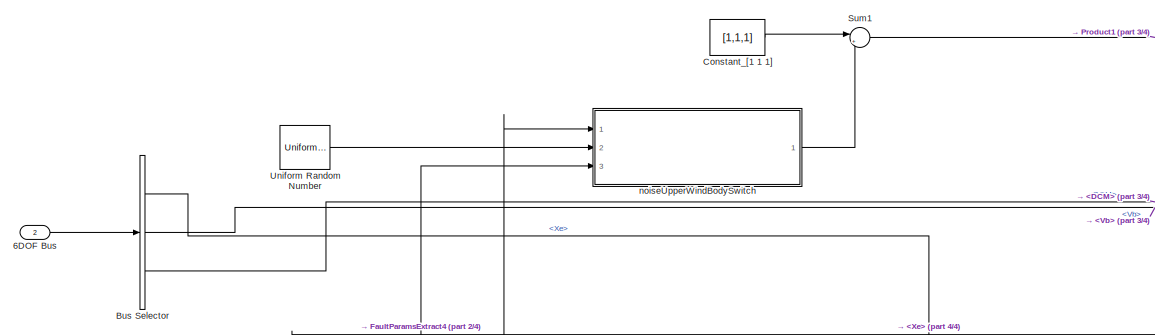
[diagram: WindFault - part 1/4, top center region]
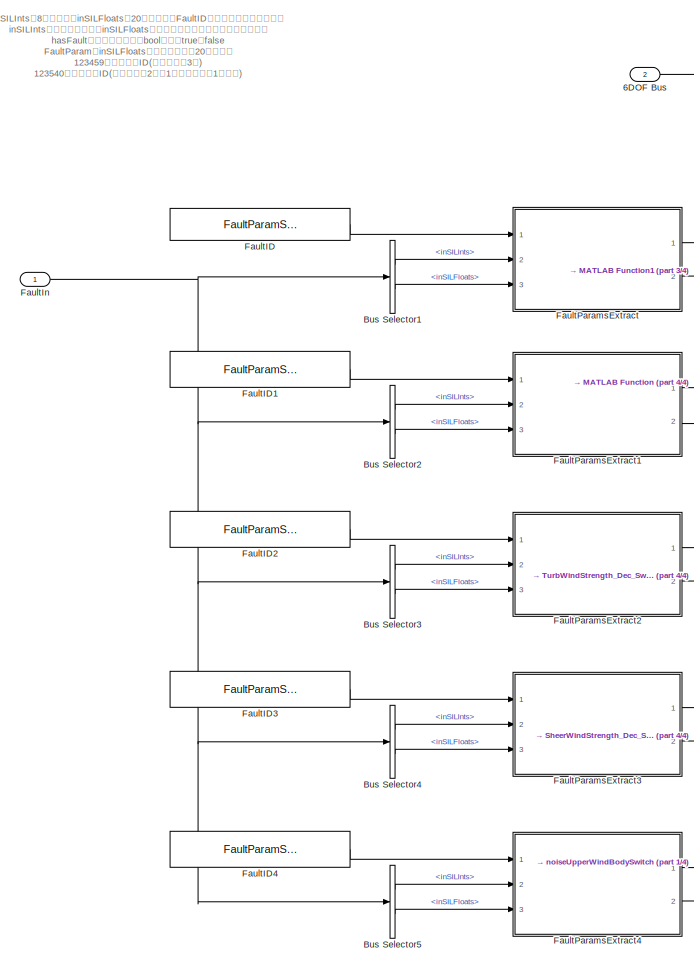
[diagram: WindFault - part 2/4, left side, full height]
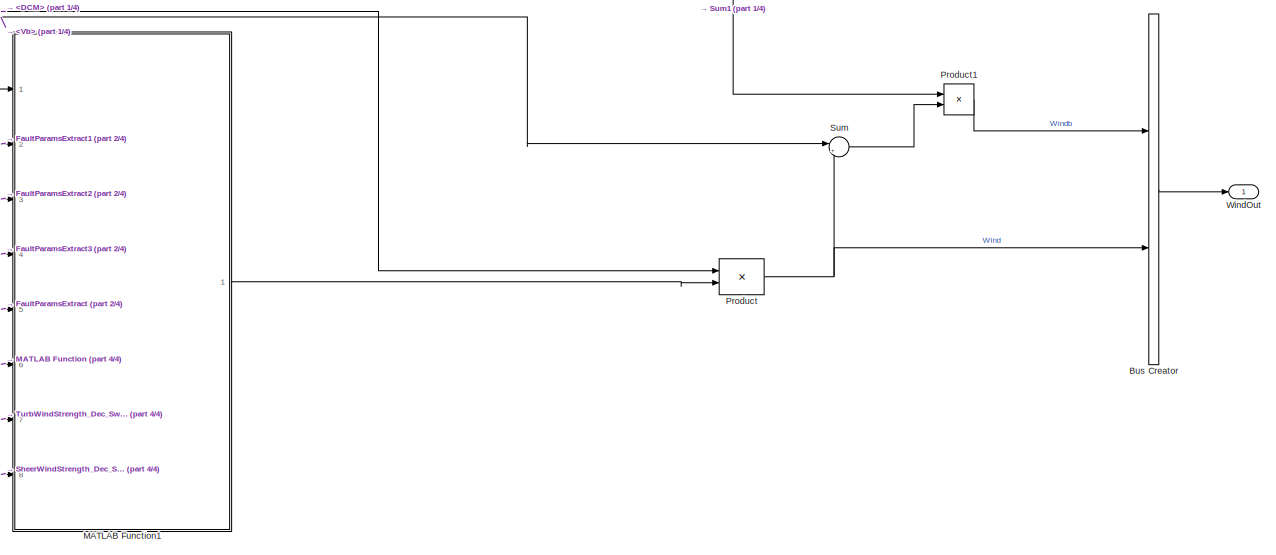
[diagram: WindFault - part 3/4, middle right region]
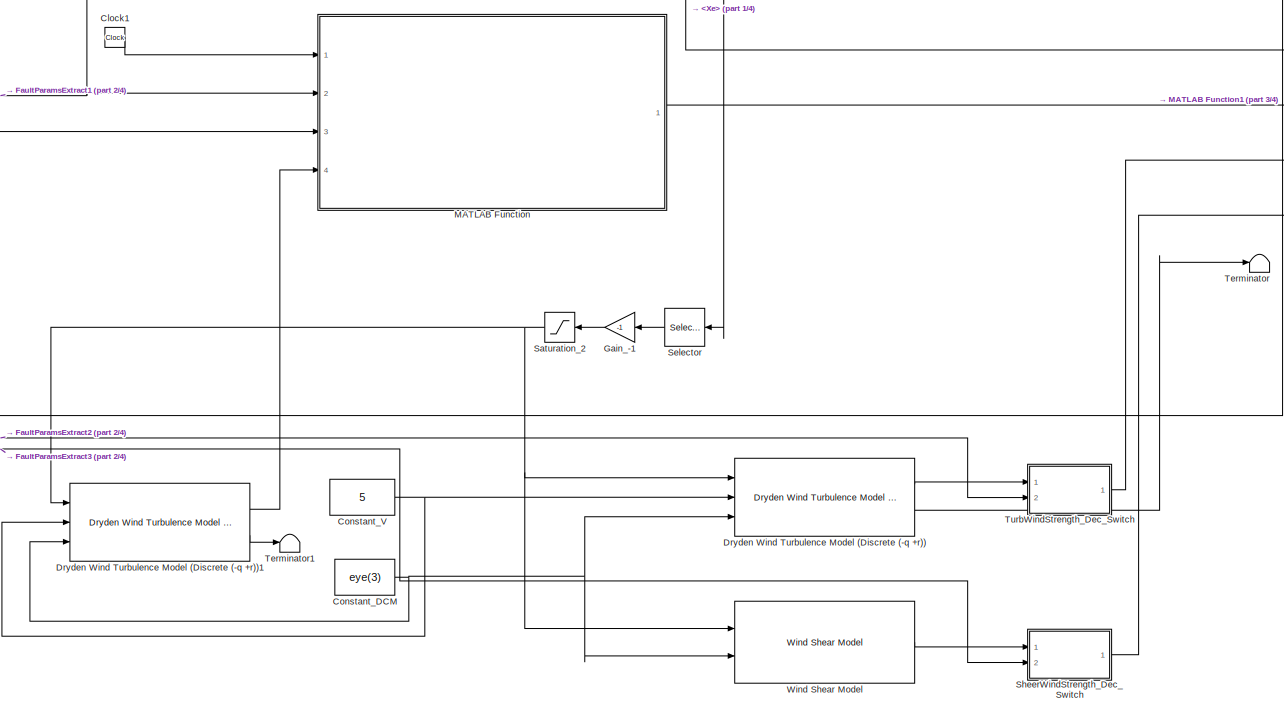
[diagram: WindFault - part 4/4, bottom center region]
BLOCK [SubSystem] WindFault
  Ports = [2, 1]
  RequestExecContextInheritance = off
BLOCK [Inport] WindFault/6DOF Bus
  Port = 2
BLOCK [BusCreator] WindFault/Bus Creator
  DisplayOption = bar
  InheritFromInputs = on
  Inputs = 2
  Ports = [2, 1]
BLOCK [BusSelector] WindFault/Bus Selector
  OutputSignals = Xe,Vb,DCM
  Ports = [1, 3]
BLOCK [BusSelector] WindFault/Bus Selector1
  OutputSignals = inSILInts,inSILFloats
  Ports = [1, 2]
BLOCK [BusSelector] WindFault/Bus Selector2
  OutputSignals = inSILInts,inSILFloats
  Ports = [1, 2]
BLOCK [BusSelector] WindFault/Bus Selector3
  OutputSignals = inSILInts,inSILFloats
  Ports = [1, 2]
BLOCK [BusSelector] WindFault/Bus Selector4
  OutputSignals = inSILInts,inSILFloats
  Ports = [1, 2]
BLOCK [BusSelector] WindFault/Bus Selector5
  OutputSignals = inSILInts,inSILFloats
  Ports = [1, 2]
BLOCK [Clock] WindFault/Clock1
BLOCK [Constant] WindFault/Constant_DCM
  Value = eye(3)
BLOCK [Constant] WindFault/Constant_V
  Value = 5
BLOCK [Constant] WindFault/Constant_[1 1 1]
  Value = [1,1,1]
  VectorParams1D = off
BLOCK [Reference] WindFault/Dryden Wind Turbulence Model (Discrete (-q +r))  REF=aerolibwind2/Dryden Wind Turbulence Model 
(Continuous (+q -r))
  Ports = [3, 2]
  SourceBlock = aerolibwind2/Dryden Wind Turbulence Model \n(Continuous (+q -r))
  SourceProductBaseCode = AE
  SourceType = Wind Turbulence Model
BLOCK [Reference] WindFault/Dryden Wind Turbulence Model (Discrete (-q +r))1  REF=aerolibwind2/Dryden Wind Turbulence Model 
(Continuous (+q -r))
  Ports = [3, 2]
  SourceBlock = aerolibwind2/Dryden Wind Turbulence Model \n(Continuous (+q -r))
  SourceProductBaseCode = AE
  SourceType = Wind Turbulence Model
BLOCK [Constant] WindFault/FaultID
  OutDataTypeStr = int32
  Value = FaultParamStruct.ConstWindFaultID
BLOCK [Constant] WindFault/FaultID1
  OutDataTypeStr = int32
  Value = FaultParamStruct.GustWindFaultID
BLOCK [Constant] WindFault/FaultID2
  OutDataTypeStr = int32
  Value = FaultParamStruct.TurbWindFaultID
BLOCK [Constant] WindFault/FaultID3
  OutDataTypeStr = int32
  Value = FaultParamStruct.SheerWindFaultID
BLOCK [Constant] WindFault/FaultID4
  OutDataTypeStr = int32
  Value = FaultParamStruct.NoiseWindFaultID
BLOCK [Inport] WindFault/FaultIn
BLOCK [SubSystem] WindFault/FaultParamsExtract
  ErrorFcn = Stateflow.Translate.translate
  PermitHierarchicalResolution = ExplicitOnly
  Ports = [3, 2]
  RequestExecContextInheritance = off
  SFBlockType = MATLAB Function
  TreatAsAtomicUnit = on
BLOCK [Demux] WindFault/FaultParamsExtract/ Demux 
  Outputs = 1
  Ports = [1, 1]
BLOCK [S-Function] WindFault/FaultParamsExtract/ SFunction 
  EnableBusSupport = off
  FunctionName = sf_sfun
  PortCounts = [3 3]
  Ports = [3, 3]
  SFcnIsStateOwnerBlock = off
  SFunctionDeploymentMode = off
  Tag = Stateflow S-Function QuadModelLib2017b 58
BLOCK [Terminator] WindFault/FaultParamsExtract/ Terminator 
BLOCK [Inport] WindFault/FaultParamsExtract/FaultID
BLOCK [Outport] WindFault/FaultParamsExtract/FaultParam
  Port = 2
  VectorParamsAs1DForOutWhenUnconnected = off
BLOCK [Outport] WindFault/FaultParamsExtract/hasFault_ConstWind
  VectorParamsAs1DForOutWhenUnconnected = off
BLOCK [Inport] WindFault/FaultParamsExtract/inFloats
  Port = 3
BLOCK [Inport] WindFault/FaultParamsExtract/inInts
  Port = 2
BLOCK [SubSystem] WindFault/FaultParamsExtract1
  ErrorFcn = Stateflow.Translate.translate
  PermitHierarchicalResolution = ExplicitOnly
  Ports = [3, 2]
  RequestExecContextInheritance = off
  SFBlockType = MATLAB Function
  TreatAsAtomicUnit = on
BLOCK [Demux] WindFault/FaultParamsExtract1/ Demux 
  Outputs = 1
  Ports = [1, 1]
BLOCK [S-Function] WindFault/FaultParamsExtract1/ SFunction 
  EnableBusSupport = off
  FunctionName = sf_sfun
  PortCounts = [3 3]
  Ports = [3, 3]
  SFcnIsStateOwnerBlock = off
  SFunctionDeploymentMode = off
  Tag = Stateflow S-Function QuadModelLib2017b 36
BLOCK [Terminator] WindFault/FaultParamsExtract1/ Terminator 
BLOCK [Inport] WindFault/FaultParamsExtract1/FaultID
BLOCK [Outport] WindFault/FaultParamsExtract1/FaultParam
  Port = 2
  VectorParamsAs1DForOutWhenUnconnected = off
BLOCK [Outport] WindFault/FaultParamsExtract1/hasFault_GustWind
  VectorParamsAs1DForOutWhenUnconnected = off
BLOCK [Inport] WindFault/FaultParamsExtract1/inFloats
  Port = 3
BLOCK [Inport] WindFault/FaultParamsExtract1/inInts
  Port = 2
BLOCK [SubSystem] WindFault/FaultParamsExtract2
  ErrorFcn = Stateflow.Translate.translate
  PermitHierarchicalResolution = ExplicitOnly
  Ports = [3, 2]
  RequestExecContextInheritance = off
  SFBlockType = MATLAB Function
  TreatAsAtomicUnit = on
BLOCK [Demux] WindFault/FaultParamsExtract2/ Demux 
  Outputs = 1
  Ports = [1, 1]
BLOCK [S-Function] WindFault/FaultParamsExtract2/ SFunction 
  EnableBusSupport = off
  FunctionName = sf_sfun
  PortCounts = [3 3]
  Ports = [3, 3]
  SFcnIsStateOwnerBlock = off
  SFunctionDeploymentMode = off
  Tag = Stateflow S-Function QuadModelLib2017b 59
BLOCK [Terminator] WindFault/FaultParamsExtract2/ Terminator 
BLOCK [Inport] WindFault/FaultParamsExtract2/FaultID
BLOCK [Outport] WindFault/FaultParamsExtract2/FaultParam
  Port = 2
  VectorParamsAs1DForOutWhenUnconnected = off
BLOCK [Outport] WindFault/FaultParamsExtract2/hasFault_TurbWind
  VectorParamsAs1DForOutWhenUnconnected = off
BLOCK [Inport] WindFault/FaultParamsExtract2/inFloats
  Port = 3
BLOCK [Inport] WindFault/FaultParamsExtract2/inInts
  Port = 2
BLOCK [SubSystem] WindFault/FaultParamsExtract3
  ErrorFcn = Stateflow.Translate.translate
  PermitHierarchicalResolution = ExplicitOnly
  Ports = [3, 2]
  RequestExecContextInheritance = off
  SFBlockType = MATLAB Function
  TreatAsAtomicUnit = on
BLOCK [Demux] WindFault/FaultParamsExtract3/ Demux 
  Outputs = 1
  Ports = [1, 1]
BLOCK [S-Function] WindFault/FaultParamsExtract3/ SFunction 
  EnableBusSupport = off
  FunctionName = sf_sfun
  PortCounts = [3 3]
  Ports = [3, 3]
  SFcnIsStateOwnerBlock = off
  SFunctionDeploymentMode = off
  Tag = Stateflow S-Function QuadModelLib2017b 60
BLOCK [Terminator] WindFault/FaultParamsExtract3/ Terminator 
BLOCK [Inport] WindFault/FaultParamsExtract3/FaultID
BLOCK [Outport] WindFault/FaultParamsExtract3/FaultParam
  Port = 2
  VectorParamsAs1DForOutWhenUnconnected = off
BLOCK [Outport] WindFault/FaultParamsExtract3/hasFault_SheerWind
  VectorParamsAs1DForOutWhenUnconnected = off
BLOCK [Inport] WindFault/FaultParamsExtract3/inFloats
  Port = 3
BLOCK [Inport] WindFault/FaultParamsExtract3/inInts
  Port = 2
BLOCK [SubSystem] WindFault/FaultParamsExtract4
  ErrorFcn = Stateflow.Translate.translate
  PermitHierarchicalResolution = ExplicitOnly
  Ports = [3, 2]
  RequestExecContextInheritance = off
  SFBlockType = MATLAB Function
  TreatAsAtomicUnit = on
BLOCK [Demux] WindFault/FaultParamsExtract4/ Demux 
  Outputs = 1
  Ports = [1, 1]
BLOCK [S-Function] WindFault/FaultParamsExtract4/ SFunction 
  EnableBusSupport = off
  FunctionName = sf_sfun
  PortCounts = [3 3]
  Ports = [3, 3]
  SFcnIsStateOwnerBlock = off
  SFunctionDeploymentMode = off
  Tag = Stateflow S-Function QuadModelLib2017b 37
BLOCK [Terminator] WindFault/FaultParamsExtract4/ Terminator 
BLOCK [Inport] WindFault/FaultParamsExtract4/FaultID
BLOCK [Outport] WindFault/FaultParamsExtract4/FaultParam
  Port = 2
  VectorParamsAs1DForOutWhenUnconnected = off
BLOCK [Outport] WindFault/FaultParamsExtract4/hasFault_WindNoise
  VectorParamsAs1DForOutWhenUnconnected = off
BLOCK [Inport] WindFault/FaultParamsExtract4/inFloats
  Port = 3
BLOCK [Inport] WindFault/FaultParamsExtract4/inInts
  Port = 2
BLOCK [Gain] WindFault/Gain_-1
  Gain = -1
BLOCK [SubSystem] WindFault/MATLAB Function
  ErrorFcn = Stateflow.Translate.translate
  PermitHierarchicalResolution = ExplicitOnly
  Ports = [4, 1]
  RequestExecContextInheritance = off
  SFBlockType = MATLAB Function
  TreatAsAtomicUnit = on
BLOCK [Demux] WindFault/MATLAB Function/ Demux 
  Outputs = 1
  Ports = [1, 1]
BLOCK [S-Function] WindFault/MATLAB Function/ SFunction 
  EnableBusSupport = off
  FunctionName = sf_sfun
  PortCounts = [4 2]
  Ports = [4, 2]
  SFcnIsStateOwnerBlock = off
  SFunctionDeploymentMode = off
  Tag = Stateflow S-Function QuadModelLib2017b 28
BLOCK [Terminator] WindFault/MATLAB Function/ Terminator 
BLOCK [Inport] WindFault/MATLAB Function/GustWindParams
  Port = 3
BLOCK [Outport] WindFault/MATLAB Function/gWind
  VectorParamsAs1DForOutWhenUnconnected = off
BLOCK [Inport] WindFault/MATLAB Function/isGustWind
  Port = 2
BLOCK [Inport] WindFault/MATLAB Function/t
BLOCK [Inport] WindFault/MATLAB Function/turb
  Port = 4
BLOCK [SubSystem] WindFault/MATLAB Function1
  ErrorFcn = Stateflow.Translate.translate
  PermitHierarchicalResolution = ExplicitOnly
  Ports = [8, 1]
  RequestExecContextInheritance = off
  SFBlockType = MATLAB Function
  TreatAsAtomicUnit = on
BLOCK [Demux] WindFault/MATLAB Function1/ Demux 
  Outputs = 1
  Ports = [1, 1]
BLOCK [S-Function] WindFault/MATLAB Function1/ SFunction 
  EnableBusSupport = off
  FunctionName = sf_sfun
  PortCounts = [8 2]
  Ports = [8, 2]
  SFcnIsStateOwnerBlock = off
  SFunctionDeploymentMode = off
  Tag = Stateflow S-Function QuadModelLib2017b 29
BLOCK [Terminator] WindFault/MATLAB Function1/ Terminator 
BLOCK [Inport] WindFault/MATLAB Function1/ConstWind
  Port = 5
BLOCK [Inport] WindFault/MATLAB Function1/GustWind
  Port = 6
BLOCK [Inport] WindFault/MATLAB Function1/SheerWind
  Port = 8
BLOCK [Inport] WindFault/MATLAB Function1/TurbWind
  Port = 7
BLOCK [Inport] WindFault/MATLAB Function1/isConstWind
BLOCK [Inport] WindFault/MATLAB Function1/isGustWind
  Port = 2
BLOCK [Inport] WindFault/MATLAB Function1/isSheerWind
  Port = 4
BLOCK [Inport] WindFault/MATLAB Function1/isTurbWind
  Port = 3
BLOCK [Outport] WindFault/MATLAB Function1/wind
  VectorParamsAs1DForOutWhenUnconnected = off
BLOCK [Product] WindFault/Product
  Multiplication = Matrix(*)
  Ports = [2, 1]
BLOCK [Product] WindFault/Product1
  Ports = [2, 1]
BLOCK [Saturate] WindFault/Saturation_2
  LowerLimit = 0
  UpperLimit = 10000
BLOCK [Selector] WindFault/Selector
  IndexOptions = Index vector (dialog)
  Indices = [3]
  InputPortWidth = 3
  OutputSizes = 1
  Ports = [1, 1]
BLOCK [SubSystem] WindFault/SheerWindStrength_Dec_Switch
  ErrorFcn = Stateflow.Translate.translate
  PermitHierarchicalResolution = ExplicitOnly
  Ports = [2, 1]
  RequestExecContextInheritance = off
  SFBlockType = MATLAB Function
  TreatAsAtomicUnit = on
BLOCK [Demux] WindFault/SheerWindStrength_Dec_Switch/ Demux 
  Outputs = 1
  Ports = [1, 1]
BLOCK [S-Function] WindFault/SheerWindStrength_Dec_Switch/ SFunction 
  EnableBusSupport = off
  FunctionName = sf_sfun
  PortCounts = [2 2]
  Ports = [2, 2]
  SFcnIsStateOwnerBlock = off
  SFunctionDeploymentMode = off
  Tag = Stateflow S-Function QuadModelLib2017b 42
BLOCK [Terminator] WindFault/SheerWindStrength_Dec_Switch/ Terminator 
BLOCK [Outport] WindFault/SheerWindStrength_Dec_Switch/SheerWind
BLOCK [Inport] WindFault/SheerWindStrength_Dec_Switch/SheerWindParams
  Port = 2
BLOCK [Inport] WindFault/SheerWindStrength_Dec_Switch/vwind
BLOCK [Sum] WindFault/Sum
  Inputs = |+-
  Ports = [2, 1]
BLOCK [Sum] WindFault/Sum1
  Inputs = |++
  Ports = [2, 1]
BLOCK [Terminator] WindFault/Terminator
BLOCK [Terminator] WindFault/Terminator1
BLOCK [SubSystem] WindFault/TurbWindStrength_Dec_Switch
  ErrorFcn = Stateflow.Translate.translate
  PermitHierarchicalResolution = ExplicitOnly
  Ports = [2, 1]
  RequestExecContextInheritance = off
  SFBlockType = MATLAB Function
  TreatAsAtomicUnit = on
BLOCK [Demux] WindFault/TurbWindStrength_Dec_Switch/ Demux 
  Outputs = 1
  Ports = [1, 1]
BLOCK [S-Function] WindFault/TurbWindStrength_Dec_Switch/ SFunction 
  EnableBusSupport = off
  FunctionName = sf_sfun
  PortCounts = [2 2]
  Ports = [2, 2]
  SFcnIsStateOwnerBlock = off
  SFunctionDeploymentMode = off
  Tag = Stateflow S-Function QuadModelLib2017b 40
BLOCK [Terminator] WindFault/TurbWindStrength_Dec_Switch/ Terminator 
BLOCK [Outport] WindFault/TurbWindStrength_Dec_Switch/TurbWind
BLOCK [Inport] WindFault/TurbWindStrength_Dec_Switch/TurbWindParams
  Port = 2
BLOCK [Inport] WindFault/TurbWindStrength_Dec_Switch/vwind
BLOCK [UniformRandomNumber] WindFault/Uniform Random Number
  Maximum = [1,1,0.5]
  Minimum = [-1,-1,-0.5]
  SampleTime = 0.003
  Seed = [564565,6846798,46545]
BLOCK [Reference] WindFault/Wind Shear Model  REF=aerolibwind2/Wind Shear Model
  Ports = [2, 1]
  SourceBlock = aerolibwind2/Wind Shear Model
  SourceProductBaseCode = AE
  SourceType = Wind Shear Model
BLOCK [Outport] WindFault/WindOut
BLOCK [SubSystem] WindFault/noiseUpperWindBodySwitch
  ErrorFcn = Stateflow.Translate.translate
  PermitHierarchicalResolution = ExplicitOnly
  Ports = [3, 1]
  RequestExecContextInheritance = off
  SFBlockType = MATLAB Function
  TreatAsAtomicUnit = on
BLOCK [Demux] WindFault/noiseUpperWindBodySwitch/ Demux 
  Outputs = 1
  Ports = [1, 1]
BLOCK [S-Function] WindFault/noiseUpperWindBodySwitch/ SFunction 
  EnableBusSupport = off
  FunctionName = sf_sfun
  PortCounts = [3 2]
  Ports = [3, 2]
  SFcnIsStateOwnerBlock = off
  SFunctionDeploymentMode = off
  Tag = Stateflow S-Function QuadModelLib2017b 47
BLOCK [Terminator] WindFault/noiseUpperWindBodySwitch/ Terminator 
BLOCK [Inport] WindFault/noiseUpperWindBodySwitch/Noise
  Port = 2
BLOCK [Inport] WindFault/noiseUpperWindBodySwitch/NoiseParams
BLOCK [Inport] WindFault/noiseUpperWindBodySwitch/isNoiseFault
  Port = 3
BLOCK [Outport] WindFault/noiseUpperWindBodySwitch/y
ANNOTATION BatteryFault: inSILInts是8维的输入，inSILFloats是20维的输入，FaultID是本故障的唯一标识密钥 inSILInts的每一位，对应了inSILFloats的两位数字，用于将故障参数传进来。 hasFault为是否有故障注入bool变量，true或false FaultParam和inSILFloats维度相同，都是20维浮点数 123452为用户自定义悬停故障ID(1个故障参数，为悬停时间) 123453为电池失效故障ID(0个故障参数) 123454为低电压故障ID(1个故障参数，剩余电压因子) 123455为低电量故障ID(1个故障参数，剩余电量因子) 注：如果没有新的故障注入进来，FaultParamsExtract会保持上一时刻的值。
ANNOTATION GPSFault: inSILInts是8维的输入，inSILFloats是20维的输入，FaultID是本故障的唯一标识密钥 inSILInts的每一位，对应了inSILFloats的两位数字，用于将故障参数传进来。 hasFault为是否有故障注入bool变量，true或false FaultParam和inSILFloats维度相同，都是20维浮点数 123548为GPS故障ID 注：如果没有新的故障注入进来，FaultParamsExtract会保持上一时刻的值。
ANNOTATION LoadFault: inSILInts是8维的输入，inSILFloats是20维的输入，FaultID是本故障的唯一标识密钥 inSILInts的每一位，对应了inSILFloats的两位数字，用于将故障参数传进来。 hasFault为是否有故障注入bool变量，true或false FaultParam和inSILFloats维度相同，都是20维浮点数 123456为负载掉落故障ID(1个故障参数，重量泄露比) 123457为负载漂移故障ID(4个故障参数，重量泄露比，x，y，z的漂移因子) 123458为负载泄露故障ID(2个故障参数，1个重量泄露比，1个泄露因子) 注：如果没有新的故障注入进来，FaultParamsExtract会保持上一时刻的值。
ANNOTATION MotorFault: inSILInts是8维的输入，inSILFloats是20维的输入，FaultID是本故障的唯一标识密钥 inSILInts的每一位，对应了inSILFloats的两位数字，用于将故障参数传进来。 hasFault为是否有故障注入bool变量，true或false FaultParam和inSILFloats维度相同，都是20维浮点数 123450为电机故障ID 注：如果没有新的故障注入进来，FaultParamsExtract会保持上一时刻的值。
ANNOTATION PropFault: inSILInts是8维的输入，inSILFloats是20维的输入，FaultID是本故障的唯一标识密钥 inSILInts的每一位，对应了inSILFloats的两位数字，用于将故障参数传进来。 hasFault为是否有故障注入bool变量，true或false FaultParam和inSILFloats维度相同，都是20维浮点数 123451为螺旋桨故障ID 注：如果没有新的故障注入进来，FaultParamsExtract会保持上一时刻的值。
ANNOTATION SensorFault: inSILInts是8维的输入，inSILFloats是20维的输入，FaultID是本故障的唯一标识密钥 inSILInts的每一位，对应了inSILFloats的两位数字，用于将故障参数传进来。 hasFault为是否有故障注入bool变量，true或false FaultParam和inSILFloats维度相同，都是20维浮点数 123544为加速度计故障ID 123545为陀螺仪故障ID 123546为磁力计故障ID 123547为气压计故障ID 注：如果没有新的故障注入进来，FaultParamsExtract会保持上一时刻的值。
ANNOTATION WindFault: inSILInts是8维的输入，inSILFloats是20维的输入，FaultID是本故障的唯一标识密钥 inSILInts的每一位，对应了inSILFloats的两位数字，用于将故障参数传进来。 hasFault为是否有故障注入bool变量，true或false FaultParam和inSILFloats维度相同，都是20维浮点数 123459为常风故障ID(故障参数为3个) 123540为阵风故障ID(故障参数为2个，1个阵风强度，1个方向) 123541为紊流风故障ID(故障参数为1个，强度) 123542为切向风故障ID(故障参数为1个，强度) 123543为噪声风故障ID(参数为2个，1格式风振幅扰动因子范围0到1,1个风增益水平）) 注：如果没有新的故障注入进来，FaultParamsExtract会保持上一时刻的值。
LINE BatteryFault/Bus Creator:1 -> BatteryFault/BatteryFaultParam:1
LINE BatteryFault/Bus Selector1:1 -> BatteryFault/FaultParamsExtract1:2
LINE BatteryFault/Bus Selector1:2 -> BatteryFault/FaultParamsExtract1:3
LINE BatteryFault/Bus Selector2:1 -> BatteryFault/FaultParamsExtract2:2
LINE BatteryFault/Bus Selector2:2 -> BatteryFault/FaultParamsExtract2:3
LINE BatteryFault/Bus Selector3:1 -> BatteryFault/FaultParamsExtract3:2
LINE BatteryFault/Bus Selector3:2 -> BatteryFault/FaultParamsExtract3:3
LINE BatteryFault/Bus Selector:1 -> BatteryFault/FaultParamsExtract:2
LINE BatteryFault/Bus Selector:2 -> BatteryFault/FaultParamsExtract:3
LINE BatteryFault/FaultID1:1 -> BatteryFault/FaultParamsExtract1:1
LINE BatteryFault/FaultID2:1 -> BatteryFault/FaultParamsExtract2:1
LINE BatteryFault/FaultID3:1 -> BatteryFault/FaultParamsExtract3:1
LINE BatteryFault/FaultID:1 -> BatteryFault/FaultParamsExtract:1
NET BatteryFault/FaultIn:1 -> BatteryFault/Bus Selector1:1, BatteryFault/Bus Selector2:1, BatteryFault/Bus Selector3:1, BatteryFault/Bus Selector:1
LINE BatteryFault/FaultParamsExtract1:1 -> BatteryFault/Bus Creator:3
LINE BatteryFault/FaultParamsExtract1:2 -> BatteryFault/Terminator1:1
LINE BatteryFault/FaultParamsExtract2:1 -> BatteryFault/Bus Creator:4
LINE BatteryFault/FaultParamsExtract2:2 -> BatteryFault/Bus Creator:5
LINE BatteryFault/FaultParamsExtract3:1 -> BatteryFault/Bus Creator:6
LINE BatteryFault/FaultParamsExtract3:2 -> BatteryFault/Bus Creator:7
LINE BatteryFault/FaultParamsExtract:1 -> BatteryFault/Bus Creator:1
LINE BatteryFault/FaultParamsExtract:2 -> BatteryFault/Bus Creator:2
LINE GPSFault/AccNoiseSwitch1/Acc NoiseFun:1 -> GPSFault/AccNoiseSwitch1/NoiseOut:1
LINE GPSFault/AccNoiseSwitch1/GPSFaultParam:1 -> GPSFault/AccNoiseSwitch1/Acc NoiseFun:3
LINE GPSFault/AccNoiseSwitch1/Noise:1 -> GPSFault/AccNoiseSwitch1/Acc NoiseFun:1
LINE GPSFault/AccNoiseSwitch1/isGPSFault:1 -> GPSFault/AccNoiseSwitch1/Acc NoiseFun:2
NET GPSFault/AccNoiseSwitch1:1 -> GPSFault/Bus Creator2:1, GPSFault/Sum:2
LINE GPSFault/BiasGain2:1 -> GPSFault/AccNoiseSwitch1:1
LINE GPSFault/Bus Creator2:1 -> GPSFault/Goto:1
LINE GPSFault/Bus Selector:1 -> GPSFault/FaultParamsExtract:2
LINE GPSFault/Bus Selector:2 -> GPSFault/FaultParamsExtract:3
LINE GPSFault/FaultID:1 -> GPSFault/FaultParamsExtract:1
LINE GPSFault/FaultIn:1 -> GPSFault/Bus Selector:1
LINE GPSFault/FaultParamsExtract:1 -> GPSFault/AccNoiseSwitch1:2
LINE GPSFault/FaultParamsExtract:2 -> GPSFault/AccNoiseSwitch1:3
LINE GPSFault/Flat Earth to LLA:1 -> GPSFault/Mux:1
LINE GPSFault/Flat Earth to LLA:2 -> GPSFault/Saturation:1
LINE GPSFault/ModelParam.envAltitude:1 -> GPSFault/Flat Earth to LLA:2
LINE GPSFault/Mux:1 -> GPSFault/GPSOut:1
LINE GPSFault/Saturation:1 -> GPSFault/Mux:2
LINE GPSFault/Sum:1 -> GPSFault/Flat Earth to LLA:1
LINE GPSFault/Uniform Random Number5:1 -> GPSFault/BiasGain2:1
LINE GPSFault/Xe:1 -> GPSFault/Sum:1
LINE LoadFault/Bus Creator:1 -> LoadFault/LoadFaultParam:1
LINE LoadFault/Bus Selector2:1 -> LoadFault/FaultParamsExtract1:2
LINE LoadFault/Bus Selector2:2 -> LoadFault/FaultParamsExtract1:3
LINE LoadFault/Bus Selector3:1 -> LoadFault/FaultParamsExtract2:2
LINE LoadFault/Bus Selector3:2 -> LoadFault/FaultParamsExtract2:3
LINE LoadFault/Bus Selector:1 -> LoadFault/FaultParamsExtract3:2
LINE LoadFault/Bus Selector:2 -> LoadFault/FaultParamsExtract3:3
LINE LoadFault/FaultID1:1 -> LoadFault/FaultParamsExtract1:1
LINE LoadFault/FaultID2:1 -> LoadFault/FaultParamsExtract2:1
LINE LoadFault/FaultID:1 -> LoadFault/FaultParamsExtract3:1
NET LoadFault/FaultIn:1 -> LoadFault/Bus Selector2:1, LoadFault/Bus Selector3:1, LoadFault/Bus Selector:1
LINE LoadFault/FaultParamsExtract1:1 -> LoadFault/Bus Creator:3
LINE LoadFault/FaultParamsExtract1:2 -> LoadFault/Bus Creator:4
LINE LoadFault/FaultParamsExtract2:1 -> LoadFault/Bus Creator:5
LINE LoadFault/FaultParamsExtract2:2 -> LoadFault/Bus Creator:6
LINE LoadFault/FaultParamsExtract3:1 -> LoadFault/Bus Creator:1
LINE LoadFault/FaultParamsExtract3:2 -> LoadFault/Bus Creator:2
LINE MotorFault/Band-Limited White Noise:1 -> MotorFault/Gain:1
LINE MotorFault/Bus Creator:1 -> MotorFault/Goto:1
LINE MotorFault/Bus Selector:1 -> MotorFault/FaultParamsExtract:2
LINE MotorFault/Bus Selector:2 -> MotorFault/FaultParamsExtract:3
LINE MotorFault/Constant:1 -> MotorFault/Discrete Wind Gust Model:1
LINE MotorFault/Data Type Conversion1:1 -> MotorFault/Bus Creator:1
LINE MotorFault/Discrete Wind Gust Model:1 -> MotorFault/Selector:1
LINE MotorFault/FaultID:1 -> MotorFault/FaultParamsExtract:1
LINE MotorFault/FaultIn:1 -> MotorFault/Bus Selector:1
LINE MotorFault/FaultParamsExtract:1 -> MotorFault/MotorFaultModel:1
LINE MotorFault/FaultParamsExtract:2 -> MotorFault/MotorFaultModel:2
LINE MotorFault/FaultParamsExtract:3 -> MotorFault/MotorFaultModel:4
LINE MotorFault/Gain:1 -> MotorFault/Sum:1
NET MotorFault/MotorFaultModel:1 -> MotorFault/Data Type Conversion1:1, MotorFault/PWMOut:1
LINE MotorFault/MotorNum:1 -> MotorFault/MotorFaultModel:5
LINE MotorFault/PWMIn:1 -> MotorFault/MotorFaultModel:3
LINE MotorFault/Selector:1 -> MotorFault/Sum:2
LINE MotorFault/Sum:1 -> MotorFault/MotorFaultModel:6
LINE PropFault/Band-Limited White Noise:1 -> PropFault/Gain:1
LINE PropFault/Bus Creator:1 -> PropFault/Goto:1
LINE PropFault/Bus Selector:1 -> PropFault/FaultParamsExtract:2
LINE PropFault/Bus Selector:2 -> PropFault/FaultParamsExtract:3
LINE PropFault/Constant:1 -> PropFault/Discrete Wind Gust Model:1
LINE PropFault/Discrete Wind Gust Model:1 -> PropFault/Selector:1
LINE PropFault/FaultID1:1 -> PropFault/PropFaultModel:4
LINE PropFault/FaultID:1 -> PropFault/FaultParamsExtract:1
LINE PropFault/FaultIn:1 -> PropFault/Bus Selector:1
LINE PropFault/FaultParamsExtract:1 -> PropFault/PropFaultModel:1
LINE PropFault/FaultParamsExtract:2 -> PropFault/PropFaultModel:2
LINE PropFault/Gain:1 -> PropFault/Sum:1
LINE PropFault/PWMIn:1 -> PropFault/PropFaultModel:3
NET PropFault/PropFaultModel:1 -> PropFault/Bus Creator:1, PropFault/MotorRads:1
LINE PropFault/Selector:1 -> PropFault/Sum:2
LINE PropFault/Sum:1 -> PropFault/PropFaultModel:5
LINE SensorFault/Ab:1 -> SensorFault/Three-axis Inertial Measurement Unit3:1
LINE SensorFault/AccNoiseSwitch1/Acc NoiseFun:1 -> SensorFault/AccNoiseSwitch1/NoiseOut:1
LINE SensorFault/AccNoiseSwitch1/AccFaultParam:1 -> SensorFault/AccNoiseSwitch1/Acc NoiseFun:3
LINE SensorFault/AccNoiseSwitch1/Noise:1 -> SensorFault/AccNoiseSwitch1/Acc NoiseFun:1
LINE SensorFault/AccNoiseSwitch1/isAccFault:1 -> SensorFault/AccNoiseSwitch1/Acc NoiseFun:2
NET SensorFault/AccNoiseSwitch1:1 -> SensorFault/Bus Creator1:1, SensorFault/Sum1:2
NET SensorFault/Add2:1 -> SensorFault/Bus Creator4:1, SensorFault/ISA Atmosphere Model:1, SensorFault/Mux:3
LINE SensorFault/Bus Creator1:1 -> SensorFault/Goto:1
LINE SensorFault/Bus Creator2:1 -> SensorFault/Goto1:1
LINE SensorFault/Bus Creator3:1 -> SensorFault/Goto2:1
LINE SensorFault/Bus Creator4:1 -> SensorFault/Goto3:1
LINE SensorFault/Bus Creator:1 -> SensorFault/Sensorout:1
LINE SensorFault/Bus Selector1:1 -> SensorFault/FaultParamsExtract1:2
LINE SensorFault/Bus Selector1:2 -> SensorFault/FaultParamsExtract1:3
LINE SensorFault/Bus Selector2:1 -> SensorFault/FaultParamsExtract2:2
LINE SensorFault/Bus Selector2:2 -> SensorFault/FaultParamsExtract2:3
LINE SensorFault/Bus Selector3:1 -> SensorFault/FaultParamsExtract3:2
LINE SensorFault/Bus Selector3:2 -> SensorFault/FaultParamsExtract3:3
LINE SensorFault/Bus Selector:1 -> SensorFault/FaultParamsExtract:2
LINE SensorFault/Bus Selector:2 -> SensorFault/FaultParamsExtract:3
NET SensorFault/DCMbe:1 -> SensorFault/Matrix Multiply1:1, SensorFault/Matrix Multiply2:1
LINE SensorFault/Data Type Conversion1:1 -> SensorFault/Bus Creator:5
LINE SensorFault/Data Type Conversion2:1 -> SensorFault/Bus Creator:1
LINE SensorFault/Data Type Conversion3:1 -> SensorFault/Bus Creator:2
LINE SensorFault/Data Type Conversion4:1 -> SensorFault/Bus Creator:3
LINE SensorFault/Data Type Conversion5:1 -> SensorFault/Bus Creator:4
NET SensorFault/Demux2:3 -> SensorFault/Add2:2, SensorFault/World Magnetic Model 2015:1
NET SensorFault/Dynamic Pressure:1 -> SensorFault/Gain1:1, SensorFault/Product:1
LINE SensorFault/FaultID1:1 -> SensorFault/FaultParamsExtract1:1
LINE SensorFault/FaultID2:1 -> SensorFault/FaultParamsExtract2:1
LINE SensorFault/FaultID3:1 -> SensorFault/FaultParamsExtract3:1
LINE SensorFault/FaultID:1 -> SensorFault/FaultParamsExtract:1
LINE SensorFault/FaultParamsExtract1:1 -> SensorFault/GyroNoiseSwitch:2
LINE SensorFault/FaultParamsExtract1:2 -> SensorFault/GyroNoiseSwitch:3
LINE SensorFault/FaultParamsExtract2:1 -> SensorFault/MagNoiseSwitch:2
LINE SensorFault/FaultParamsExtract2:2 -> SensorFault/MagNoiseSwitch:3
LINE SensorFault/FaultParamsExtract3:1 -> SensorFault/baro NoiseFun:1
LINE SensorFault/FaultParamsExtract3:2 -> SensorFault/baro NoiseFun:2
LINE SensorFault/FaultParamsExtract:1 -> SensorFault/AccNoiseSwitch1:2
LINE SensorFault/FaultParamsExtract:2 -> SensorFault/AccNoiseSwitch1:3
NET SensorFault/Faultin:1 -> SensorFault/Bus Selector1:1, SensorFault/Bus Selector2:1, SensorFault/Bus Selector3:1, SensorFault/Bus Selector:1
LINE SensorFault/GPSPos:1 -> SensorFault/Demux2:1
LINE SensorFault/Gain10:1 -> SensorFault/AccNoiseSwitch1:1
LINE SensorFault/Gain11:1 -> SensorFault/MagNoiseSwitch:1
LINE SensorFault/Gain1:1 -> SensorFault/Sum:2
LINE SensorFault/Gain5:1 -> SensorFault/GyroNoiseSwitch3:1
LINE SensorFault/Gain6:1 -> SensorFault/GyroNoiseSwitch:1
LINE SensorFault/Gain9:1 -> SensorFault/GyroNoiseSwitch4:1
LINE SensorFault/Gain:1 -> SensorFault/Mux:1
LINE SensorFault/Gain_Mag:1 -> SensorFault/nT2Gauss:1
LINE SensorFault/Gravity:1 -> SensorFault/Matrix Multiply1:2
LINE SensorFault/GyroNoiseSwitch/Acc NoiseFun:1 -> SensorFault/GyroNoiseSwitch/NoiseOut:1
LINE SensorFault/GyroNoiseSwitch/AccFaultParam:1 -> SensorFault/GyroNoiseSwitch/Acc NoiseFun:3
LINE SensorFault/GyroNoiseSwitch/Noise:1 -> SensorFault/GyroNoiseSwitch/Acc NoiseFun:1
LINE SensorFault/GyroNoiseSwitch/isAccFault:1 -> SensorFault/GyroNoiseSwitch/Acc NoiseFun:2
LINE SensorFault/GyroNoiseSwitch3/Constant2:1 -> SensorFault/GyroNoiseSwitch3/Product4:2
LINE SensorFault/GyroNoiseSwitch3/In1:1 -> SensorFault/GyroNoiseSwitch3/Product4:1
LINE SensorFault/GyroNoiseSwitch3/Product4:1 -> SensorFault/GyroNoiseSwitch3/Out1:1
LINE SensorFault/GyroNoiseSwitch3:1 -> SensorFault/Add2:3
LINE SensorFault/GyroNoiseSwitch4/Constant2:1 -> SensorFault/GyroNoiseSwitch4/Sum:2
LINE SensorFault/GyroNoiseSwitch4/Constant:1 -> SensorFault/GyroNoiseSwitch4/Gain2:1
LINE SensorFault/GyroNoiseSwitch4/Gain2:1 -> SensorFault/GyroNoiseSwitch4/Sum:1
LINE SensorFault/GyroNoiseSwitch4/In1:1 -> SensorFault/GyroNoiseSwitch4/Product4:1
LINE SensorFault/GyroNoiseSwitch4/Product4:1 -> SensorFault/GyroNoiseSwitch4/Out1:1
LINE SensorFault/GyroNoiseSwitch4/Sum:1 -> SensorFault/GyroNoiseSwitch4/Product4:2
LINE SensorFault/GyroNoiseSwitch4:1 -> SensorFault/Sum:1
NET SensorFault/GyroNoiseSwitch:1 -> SensorFault/Bus Creator2:1, SensorFault/Sum2:2
LINE SensorFault/ISA Atmosphere Model:1 -> SensorFault/Terminator1:1
LINE SensorFault/ISA Atmosphere Model:2 -> SensorFault/Terminator2:1
LINE SensorFault/ISA Atmosphere Model:3 -> SensorFault/Gain:1
LINE SensorFault/ISA Atmosphere Model:4 -> SensorFault/Terminator4:1
LINE SensorFault/LowPassFilter/Demux1:1 -> SensorFault/LowPassFilter/x:1
LINE SensorFault/LowPassFilter/Demux1:2 -> SensorFault/LowPassFilter/y:1
LINE SensorFault/LowPassFilter/Demux1:3 -> SensorFault/LowPassFilter/z:1
LINE SensorFault/LowPassFilter/Mux1:1 -> SensorFault/LowPassFilter/gyroDataOut:1
LINE SensorFault/LowPassFilter/gyroDataIn:1 -> SensorFault/LowPassFilter/Demux1:1
LINE SensorFault/LowPassFilter/x:1 -> SensorFault/LowPassFilter/Mux1:1
LINE SensorFault/LowPassFilter/y:1 -> SensorFault/LowPassFilter/Mux1:2
LINE SensorFault/LowPassFilter/z:1 -> SensorFault/LowPassFilter/Mux1:3
LINE SensorFault/LowPassFilter2/Demux1:1 -> SensorFault/LowPassFilter2/x:1
LINE SensorFault/LowPassFilter2/Demux1:2 -> SensorFault/LowPassFilter2/y:1
LINE SensorFault/LowPassFilter2/Demux1:3 -> SensorFault/LowPassFilter2/z:1
LINE SensorFault/LowPassFilter2/Mux1:1 -> SensorFault/LowPassFilter2/accelDataOut:1
LINE SensorFault/LowPassFilter2/accelDataIn:1 -> SensorFault/LowPassFilter2/Demux1:1
LINE SensorFault/LowPassFilter2/x:1 -> SensorFault/LowPassFilter2/Mux1:1
LINE SensorFault/LowPassFilter2/y:1 -> SensorFault/LowPassFilter2/Mux1:2
LINE SensorFault/LowPassFilter2/z:1 -> SensorFault/LowPassFilter2/Mux1:3
LINE SensorFault/MagNoiseSwitch/Acc NoiseFun:1 -> SensorFault/MagNoiseSwitch/NoiseOut:1
LINE SensorFault/MagNoiseSwitch/AccFaultParam:1 -> SensorFault/MagNoiseSwitch/Acc NoiseFun:3
LINE SensorFault/MagNoiseSwitch/Noise:1 -> SensorFault/MagNoiseSwitch/Acc NoiseFun:1
LINE SensorFault/MagNoiseSwitch/isAccFault:1 -> SensorFault/MagNoiseSwitch/Acc NoiseFun:2
NET SensorFault/MagNoiseSwitch:1 -> SensorFault/Bus Creator3:1, SensorFault/Sum3:2
LINE SensorFault/Matrix Multiply1:1 -> SensorFault/Three-axis Inertial Measurement Unit3:5
LINE SensorFault/Matrix Multiply2:1 -> SensorFault/Gain_Mag:1
LINE SensorFault/Mux:1 -> SensorFault/Data Type Conversion5:1
LINE SensorFault/NoiseFilter/Demux:1 -> SensorFault/NoiseFilter/Transfer Fcn4:1
LINE SensorFault/NoiseFilter/Demux:2 -> SensorFault/NoiseFilter/Transfer Fcn5:1
LINE SensorFault/NoiseFilter/Demux:3 -> SensorFault/NoiseFilter/Transfer Fcn6:1
LINE SensorFault/NoiseFilter/In1:1 -> SensorFault/NoiseFilter/Demux:1
LINE SensorFault/NoiseFilter/Mux1:1 -> SensorFault/NoiseFilter/Out1:1
LINE SensorFault/NoiseFilter/Transfer Fcn4:1 -> SensorFault/NoiseFilter/Mux1:1
LINE SensorFault/NoiseFilter/Transfer Fcn5:1 -> SensorFault/NoiseFilter/Mux1:2
LINE SensorFault/NoiseFilter/Transfer Fcn6:1 -> SensorFault/NoiseFilter/Mux1:3
LINE SensorFault/NoiseFilter1/Demux:1 -> SensorFault/NoiseFilter1/Transfer Fcn4:1
LINE SensorFault/NoiseFilter1/Demux:2 -> SensorFault/NoiseFilter1/Transfer Fcn5:1
LINE SensorFault/NoiseFilter1/Demux:3 -> SensorFault/NoiseFilter1/Transfer Fcn6:1
LINE SensorFault/NoiseFilter1/In1:1 -> SensorFault/NoiseFilter1/Demux:1
LINE SensorFault/NoiseFilter1/Mux1:1 -> SensorFault/NoiseFilter1/Out1:1
LINE SensorFault/NoiseFilter1/Transfer Fcn4:1 -> SensorFault/NoiseFilter1/Mux1:1
LINE SensorFault/NoiseFilter1/Transfer Fcn5:1 -> SensorFault/NoiseFilter1/Mux1:2
LINE SensorFault/NoiseFilter1/Transfer Fcn6:1 -> SensorFault/NoiseFilter1/Mux1:3
LINE SensorFault/NoiseFilter2/Demux:1 -> SensorFault/NoiseFilter2/Transfer Fcn4:1
LINE SensorFault/NoiseFilter2/Demux:2 -> SensorFault/NoiseFilter2/Transfer Fcn5:1
LINE SensorFault/NoiseFilter2/Demux:3 -> SensorFault/NoiseFilter2/Transfer Fcn6:1
LINE SensorFault/NoiseFilter2/In1:1 -> SensorFault/NoiseFilter2/Demux:1
LINE SensorFault/NoiseFilter2/Mux1:1 -> SensorFault/NoiseFilter2/Out1:1
LINE SensorFault/NoiseFilter2/Transfer Fcn4:1 -> SensorFault/NoiseFilter2/Mux1:1
LINE SensorFault/NoiseFilter2/Transfer Fcn5:1 -> SensorFault/NoiseFilter2/Mux1:2
LINE SensorFault/NoiseFilter2/Transfer Fcn6:1 -> SensorFault/NoiseFilter2/Mux1:3
LINE SensorFault/Product:1 -> SensorFault/Add2:1
LINE SensorFault/Sum1:1 -> SensorFault/Data Type Conversion2:1
LINE SensorFault/Sum2:1 -> SensorFault/Data Type Conversion3:1
LINE SensorFault/Sum3:1 -> SensorFault/Data Type Conversion4:1
LINE SensorFault/Sum:1 -> SensorFault/Mux:2
LINE SensorFault/TempC:1 -> SensorFault/Mux:4
LINE SensorFault/Three-axis Inertial Measurement Unit3:1 -> SensorFault/Sum1:1
LINE SensorFault/Three-axis Inertial Measurement Unit3:2 -> SensorFault/Sum2:1
LINE SensorFault/Uniform Random Number1:1 -> SensorFault/Gain6:1
LINE SensorFault/Uniform Random Number4:1 -> SensorFault/Gain9:1
LINE SensorFault/Uniform Random Number5:1 -> SensorFault/Gain10:1
LINE SensorFault/Uniform Random Number7:1 -> SensorFault/Gain11:1
LINE SensorFault/Uniform Random Number:1 -> SensorFault/Gain5:1
LINE SensorFault/baro NoiseFun:1 -> SensorFault/Product:2
LINE SensorFault/center of gravity:1 -> SensorFault/Three-axis Inertial Measurement Unit3:4
LINE SensorFault/dwt:1 -> SensorFault/Three-axis Inertial Measurement Unit3:3
LINE SensorFault/magDecGain:1 -> SensorFault/Data Type Conversion1:1
LINE SensorFault/nT2Gauss:1 -> SensorFault/Sum3:1
LINE SensorFault/pressure:1 -> SensorFault/Terminator3:1
LINE SensorFault/rho:1 -> SensorFault/Dynamic Pressure:2
LINE SensorFault/wb:1 -> SensorFault/Three-axis Inertial Measurement Unit3:2
LINE SensorFault/windB:1 -> SensorFault/Dynamic Pressure:1
LINE WindFault/6DOF Bus:1 -> WindFault/Bus Selector:1
LINE WindFault/Bus Creator:1 -> WindFault/WindOut:1
LINE WindFault/Bus Selector1:1 -> WindFault/FaultParamsExtract:2
LINE WindFault/Bus Selector1:2 -> WindFault/FaultParamsExtract:3
LINE WindFault/Bus Selector2:1 -> WindFault/FaultParamsExtract1:2
LINE WindFault/Bus Selector2:2 -> WindFault/FaultParamsExtract1:3
LINE WindFault/Bus Selector3:1 -> WindFault/FaultParamsExtract2:2
LINE WindFault/Bus Selector3:2 -> WindFault/FaultParamsExtract2:3
LINE WindFault/Bus Selector4:1 -> WindFault/FaultParamsExtract3:2
LINE WindFault/Bus Selector4:2 -> WindFault/FaultParamsExtract3:3
LINE WindFault/Bus Selector5:1 -> WindFault/FaultParamsExtract4:2
LINE WindFault/Bus Selector5:2 -> WindFault/FaultParamsExtract4:3
LINE WindFault/Bus Selector:1 -> WindFault/Selector:1
LINE WindFault/Bus Selector:2 -> WindFault/Sum:1
LINE WindFault/Bus Selector:3 -> WindFault/Product:1
LINE WindFault/Clock1:1 -> WindFault/MATLAB Function:1
NET WindFault/Constant_DCM:1 -> WindFault/Dryden Wind Turbulence Model (Discrete (-q +r))1:3, WindFault/Dryden Wind Turbulence Model (Discrete (-q +r)):3, WindFault/Wind Shear Model:2
NET WindFault/Constant_V:1 -> WindFault/Dryden Wind Turbulence Model (Discrete (-q +r))1:2, WindFault/Dryden Wind Turbulence Model (Discrete (-q +r)):2
LINE WindFault/Constant_[1 1 1]:1 -> WindFault/Sum1:1
LINE WindFault/Dryden Wind Turbulence Model (Discrete (-q +r))1:1 -> WindFault/MATLAB Function:4
LINE WindFault/Dryden Wind Turbulence Model (Discrete (-q +r))1:2 -> WindFault/Terminator1:1
LINE WindFault/Dryden Wind Turbulence Model (Discrete (-q +r)):1 -> WindFault/TurbWindStrength_Dec_Switch:1
LINE WindFault/Dryden Wind Turbulence Model (Discrete (-q +r)):2 -> WindFault/Terminator:1
LINE WindFault/FaultID1:1 -> WindFault/FaultParamsExtract1:1
LINE WindFault/FaultID2:1 -> WindFault/FaultParamsExtract2:1
LINE WindFault/FaultID3:1 -> WindFault/FaultParamsExtract3:1
LINE WindFault/FaultID4:1 -> WindFault/FaultParamsExtract4:1
LINE WindFault/FaultID:1 -> WindFault/FaultParamsExtract:1
NET WindFault/FaultIn:1 -> WindFault/Bus Selector1:1, WindFault/Bus Selector2:1, WindFault/Bus Selector3:1, WindFault/Bus Selector4:1, WindFault/Bus Selector5:1
NET WindFault/FaultParamsExtract1:1 -> WindFault/MATLAB Function1:2, WindFault/MATLAB Function:2
LINE WindFault/FaultParamsExtract1:2 -> WindFault/MATLAB Function:3
LINE WindFault/FaultParamsExtract2:1 -> WindFault/MATLAB Function1:3
LINE WindFault/FaultParamsExtract2:2 -> WindFault/TurbWindStrength_Dec_Switch:2
LINE WindFault/FaultParamsExtract3:1 -> WindFault/MATLAB Function1:4
LINE WindFault/FaultParamsExtract3:2 -> WindFault/SheerWindStrength_Dec_Switch:2
LINE WindFault/FaultParamsExtract4:1 -> WindFault/noiseUpperWindBodySwitch:3
LINE WindFault/FaultParamsExtract4:2 -> WindFault/noiseUpperWindBodySwitch:1
LINE WindFault/FaultParamsExtract:1 -> WindFault/MATLAB Function1:1
LINE WindFault/FaultParamsExtract:2 -> WindFault/MATLAB Function1:5
LINE WindFault/Gain_-1:1 -> WindFault/Saturation_2:1
LINE WindFault/MATLAB Function1:1 -> WindFault/Product:2
LINE WindFault/MATLAB Function:1 -> WindFault/MATLAB Function1:6
LINE WindFault/Product1:1 -> WindFault/Bus Creator:1
NET WindFault/Product:1 -> WindFault/Bus Creator:2, WindFault/Sum:2
NET WindFault/Saturation_2:1 -> WindFault/Dryden Wind Turbulence Model (Discrete (-q +r))1:1, WindFault/Dryden Wind Turbulence Model (Discrete (-q +r)):1, WindFault/Wind Shear Model:1
LINE WindFault/Selector:1 -> WindFault/Gain_-1:1
LINE WindFault/SheerWindStrength_Dec_Switch:1 -> WindFault/MATLAB Function1:8
LINE WindFault/Sum1:1 -> WindFault/Product1:1
LINE WindFault/Sum:1 -> WindFault/Product1:2
LINE WindFault/TurbWindStrength_Dec_Switch:1 -> WindFault/MATLAB Function1:7
LINE WindFault/Uniform Random Number:1 -> WindFault/noiseUpperWindBodySwitch:2
LINE WindFault/Wind Shear Model:1 -> WindFault/SheerWindStrength_Dec_Switch:1
LINE WindFault/noiseUpperWindBodySwitch:1 -> WindFault/Sum1:2
note: NET lines group one-source signal fan-out (src -> all destinations, sorted); 1:1 wires keep LINE
CHART BatteryFault/FaultParamsExtract states=1 transitions=1
  STATE_LABEL 'eML_blk_kernel()'
  STATE_LABEL 'SCRIPT:\nfunction [hasFault_isUseCustomHovTime, FaultParam] = fcn(FaultID,inInts,inFloats)\npersistent hFault;\npersistent fParam;\n\nif isempty(hFault)\n    hFault=false;\nend\nif isempty(fParam)\n    fParam=zeros(20,1);\nend\n\nhFaultTmp=false;\nfParamTmp=zeros(20,1);\nj=1;\nfor i=1:8\n    if inInts(i) == FaultID\n        hFaultTmp=true;\n        fParamTmp(2*j-1)=inFloats(2*i-1);\n        fParamTmp(2*j)=inFloats(2...<+189ch>'
CHART SensorFault/FaultParamsExtract states=1 transitions=1
  STATE_LABEL 'eML_blk_kernel()'
  STATE_LABEL 'SCRIPT:\nfunction [hasFault_acc, FaultParam] = fcn(FaultID,inInts,inFloats)\npersistent hFault;\npersistent fParam;\n\nif isempty(hFault)\n    hFault=false;\nend\nif isempty(fParam)\n    fParam=zeros(20,1);\nend\n\nhFaultTmp=false;\nfParamTmp=zeros(20,1);\nj=1;\nfor i=1:8\n    if inInts(i) == FaultID\n        hFaultTmp=true;\n        fParamTmp(2*j-1)=inFloats(2*i-1);\n        fParamTmp(2*j)=inFloats(2*i);\n        j=...<+159ch>'
CHART SensorFault/FaultParamsExtract1 states=1 transitions=1
  STATE_LABEL 'eML_blk_kernel()'
  STATE_LABEL 'SCRIPT:\nfunction [hasFault_gyro, FaultParam] = fcn(FaultID,inInts,inFloats)\npersistent hFault;\npersistent fParam;\n\nif isempty(hFault)\n    hFault=false;\nend\nif isempty(fParam)\n    fParam=zeros(20,1);\nend\n\nhFaultTmp=false;\nfParamTmp=zeros(20,1);\nj=1;\nfor i=1:8\n    if inInts(i) == FaultID\n        hFaultTmp=true;\n        fParamTmp(2*j-1)=inFloats(2*i-1);\n        fParamTmp(2*j)=inFloats(2*i);\n        j...<+161ch>'
CHART WindFault/MATLAB Function states=1 transitions=1
  STATE_LABEL 'eML_blk_kernel()'
  STATE_LABEL 'SCRIPT:\nfunction gWind = GustWindModel(t,isGustWind,GustWindParams,turb)\n\nif(GustWindParams(2)<1)\n    GustWindParams(2)=1;\nend\ntimeVel=60/GustWindParams(2);\n\nvmax=GustWindParams(1);\n\npersistent t0;\nif isempty(t0)\n    t0=0;\nend\n\npersistent isInGust;\nif isempty(isInGust)\n    isInGust=0;\nend\n\npersistent t1;\nif isempty(t1)\n    t1=2;\nend\n\npersistent a;\nif isempty(a)\n    a=0.5;\nend\n\npersistent ang;\nif i...<+812ch>'
CHART WindFault/MATLAB Function1 states=1 transitions=1
  STATE_LABEL 'eML_blk_kernel()'
  STATE_LABEL 'SCRIPT:\nfunction wind = WindFun(isConstWind,isGustWind,isTurbWind,isSheerWind,ConstWind,GustWind,TurbWind,SheerWind)\nwind=[0;0;0];\nif isConstWind\n    wind=[ConstWind(1);ConstWind(2);ConstWind(3)];\nelseif isGustWind\n    wind=GustWind;\nelseif isTurbWind\n    wind=TurbWind;\nelseif isSheerWind\n    wind=SheerWind;\nend\n\n\n'
CHART MotorFault/FaultParamsExtract states=1 transitions=1
  STATE_LABEL 'eML_blk_kernel()'
  STATE_LABEL 'SCRIPT:\nfunction [hasFault, FaultParam,count] = fcn(FaultID,inInts,inFloats)\npersistent hFault;\npersistent fParam;\n\nif isempty(hFault)\n    hFault=false;\nend\nif isempty(fParam)\n    fParam=zeros(20,1);\nend\n\nhFaultTmp=false;\nfParamTmp=zeros(20,1);\nj=1;\ncount = 0;\nfor i=1:8\n    if inInts(i) == FaultID\n        hFaultTmp=true;\n        fParamTmp(2*j-1)=inFloats(2*i-1);\n        fParamTmp(2*j)=inFloats(2*i...<+195ch>'
CHART BatteryFault/FaultParamsExtract1 states=1 transitions=1
  STATE_LABEL 'eML_blk_kernel()'
  STATE_LABEL 'SCRIPT:\nfunction [hasFault_isPowOff, FaultParam] = fcn(FaultID,inInts,inFloats)\npersistent hFault;\npersistent fParam;\n\nif isempty(hFault)\n    hFault=false;\nend\nif isempty(fParam)\n    fParam=zeros(20,1);\nend\n\nhFaultTmp=false;\nfParamTmp=zeros(20,1);\nj=1;\nfor i=1:8\n    if inInts(i) == FaultID\n        hFaultTmp=true;\n        fParamTmp(2*j-1)=inFloats(2*i-1);\n        fParamTmp(2*j)=inFloats(2*i);\n     ...<+169ch>'
CHART WindFault/FaultParamsExtract1 states=1 transitions=1
  STATE_LABEL 'eML_blk_kernel()'
  STATE_LABEL 'SCRIPT:\nfunction [hasFault_GustWind, FaultParam] = fcn(FaultID,inInts,inFloats)\npersistent hFault;\npersistent fParam;\n\nif isempty(hFault)\n    hFault=false;\nend\nif isempty(fParam)\n    fParam=zeros(20,1);\nend\n\nhFaultTmp=false;\nfParamTmp=zeros(20,1);\nj=1;\nfor i=1:8\n    if inInts(i) == FaultID\n        hFaultTmp=true;\n        fParamTmp(2*j-1)=inFloats(2*i-1);\n        fParamTmp(2*j)=inFloats(2*i);\n     ...<+169ch>'
CHART WindFault/FaultParamsExtract4 states=1 transitions=1
  STATE_LABEL 'eML_blk_kernel()'
  STATE_LABEL 'SCRIPT:\nfunction [hasFault_WindNoise, FaultParam] = fcn(FaultID,inInts,inFloats)\npersistent hFault;\npersistent fParam;\n\nif isempty(hFault)\n    hFault=false;\nend\nif isempty(fParam)\n    fParam=zeros(20,1);\nend\n\nhFaultTmp=false;\nfParamTmp=zeros(20,1);\nj=1;\nfor i=1:8\n    if inInts(i) == FaultID\n        hFaultTmp=true;\n        fParamTmp(2*j-1)=inFloats(2*i-1);\n        fParamTmp(2*j)=inFloats(2*i);\n    ...<+171ch>'
CHART SensorFault/FaultParamsExtract2 states=1 transitions=1
  STATE_LABEL 'eML_blk_kernel()'
  STATE_LABEL 'SCRIPT:\nfunction [hasFault_mag, FaultParam] = fcn(FaultID,inInts,inFloats)\npersistent hFault;\npersistent fParam;\n\nif isempty(hFault)\n    hFault=false;\nend\nif isempty(fParam)\n    fParam=zeros(20,1);\nend\n\nhFaultTmp=false;\nfParamTmp=zeros(20,1);\nj=1;\nfor i=1:8\n    if inInts(i) == FaultID\n        hFaultTmp=true;\n        fParamTmp(2*j-1)=inFloats(2*i-1);\n        fParamTmp(2*j)=inFloats(2*i);\n        j=...<+159ch>'
CHART SensorFault/FaultParamsExtract3 states=1 transitions=1
  STATE_LABEL 'eML_blk_kernel()'
  STATE_LABEL 'SCRIPT:\nfunction [hasFault_baro, FaultParam] = fcn(FaultID,inInts,inFloats)\npersistent hFault;\npersistent fParam;\n\nif isempty(hFault)\n    hFault=false;\nend\nif isempty(fParam)\n    fParam=zeros(20,1);\nend\n\nhFaultTmp=false;\nfParamTmp=zeros(20,1);\nj=1;\nfor i=1:8\n    if inInts(i) == FaultID\n        hFaultTmp=true;\n        fParamTmp(2*j-1)=inFloats(2*i-1);\n        fParamTmp(2*j)=inFloats(2*i);\n        j...<+161ch>'
CHART WindFault/TurbWindStrength_Dec_Switch states=1 transitions=1
  STATE_LABEL 'eML_blk_kernel()'
  STATE_LABEL 'SCRIPT:\nfunction TurbWind = fcn(vwind,TurbWindParams)\n\nTurbWind=vwind*TurbWindParams(1);\n'
CHART SensorFault/AccNoiseSwitch1/Acc NoiseFun states=1 transitions=1
  STATE_LABEL 'eML_blk_kernel()'
  STATE_LABEL 'SCRIPT:\nfunction y = fcn(u,isAccFault,AccFaultParams)\n\ny = 0.2*u;\n\nif isAccFault\n    y = (0.2+0.8*AccFaultParams(1))*u;\nend\n'
CHART WindFault/SheerWindStrength_Dec_Switch states=1 transitions=1
  STATE_LABEL 'eML_blk_kernel()'
  STATE_LABEL 'SCRIPT:\nfunction SheerWind = fcn(vwind,SheerWindParams)\nSheerWind=vwind*SheerWindParams(1);\n'
CHART SensorFault/GyroNoiseSwitch/Acc NoiseFun states=1 transitions=1
  STATE_LABEL 'eML_blk_kernel()'
  STATE_LABEL 'SCRIPT:\nfunction y = fcn(u,isAccFault,AccFaultParams)\n\ny = 0.2*u;\n\nif isAccFault\n    y = (0.2+0.8*AccFaultParams(1))*u;\nend\n'
CHART SensorFault/MagNoiseSwitch/Acc NoiseFun states=1 transitions=1
  STATE_LABEL 'eML_blk_kernel()'
  STATE_LABEL 'SCRIPT:\nfunction y = fcn(u,isAccFault,AccFaultParams)\n\ny = 0.2*u;\n\nif isAccFault\n    y = (0.2+0.8*AccFaultParams(1))*u;\nend\n'
CHART LoadFault/FaultParamsExtract1 states=1 transitions=1
  STATE_LABEL 'eML_blk_kernel()'
  STATE_LABEL 'SCRIPT:\nfunction [hasFault_isloadShift, FaultParam] = fcn(FaultID,inInts,inFloats)\npersistent hFault;\npersistent fParam;\n\nif isempty(hFault)\n    hFault=false;\nend\nif isempty(fParam)\n    fParam=zeros(20,1);\nend\n\nhFaultTmp=false;\nfParamTmp=zeros(20,1);\nj=1;\nfor i=1:8\n    if inInts(i) == FaultID\n        hFaultTmp=true;\n        fParamTmp(2*j-1)=inFloats(2*i-1);\n        fParamTmp(2*j)=inFloats(2*i);\n  ...<+175ch>'
CHART GPSFault/FaultParamsExtract states=1 transitions=1
  STATE_LABEL 'eML_blk_kernel()'
  STATE_LABEL 'SCRIPT:\nfunction [hasFault_GPS, FaultParam] = fcn(FaultID,inInts,inFloats)\npersistent hFault;\npersistent fParam;\n\nif isempty(hFault)\n    hFault=false;\nend\nif isempty(fParam)\n    fParam=zeros(20,1);\nend\n\nhFaultTmp=false;\nfParamTmp=zeros(20,1);\nj=1;\nfor i=1:8\n    if inInts(i) == FaultID\n        hFaultTmp=true;\n        fParamTmp(2*j-1)=inFloats(2*i-1);\n        fParamTmp(2*j)=inFloats(2*i);\n        j=...<+159ch>'
CHART WindFault/noiseUpperWindBodySwitch states=1 transitions=1
  STATE_LABEL 'eML_blk_kernel()'
  STATE_LABEL 'SCRIPT:\nfunction y = fcn(NoiseParams,Noise,isNoiseFault)\n\ny = [0;0;0];\nif isNoiseFault\n    Param_GlobalNoiseGainSwitch=NoiseParams(1);\n    y=Noise* Param_GlobalNoiseGainSwitch;\nend\n\n\n\n\n\n\n\n\n\n\n\n'
CHART MotorFault/MotorFaultModel states=1 transitions=1
  STATE_LABEL 'eML_blk_kernel()'
  STATE_LABEL 'SCRIPT:\nfunction y = fcn(hasFault,FaultParams,inPWMs,count,motNum,noise)\n% 本模块需要用到8维FaultParam的输入\n%因此故障ID的格式应该是：\n%inSILInts=[FaultID FaultID FaultID FaultID ...]\n%inSILInts=[param1 param2 param3 param4 param5 param6 param7 param8 ...] -> FaultParam\n% param的每一位表示本电机的健康系数（0到1），实际上就是pwm_out = pwm_in * param\n% 如果param1=0，则电机1直接坏掉，始终输出0\n\ny=inPWMs; %默认情况下不注入故障，直接将数据输出\n\nif motNum<1\n    motNum=int32(1);\ne...<+315ch>'
CHART PropFault/FaultParamsExtract states=1 transitions=1
  STATE_LABEL 'eML_blk_kernel()'
  STATE_LABEL 'SCRIPT:\nfunction [hasFault, FaultParam] = fcn(FaultID,inInts,inFloats)\npersistent hFault;\npersistent fParam;\n\nif isempty(hFault)\n    hFault=false;\nend\nif isempty(fParam)\n    fParam=zeros(20,1);\nend\n\nhFaultTmp=false;\nfParamTmp=zeros(20,1);\nj=1;\nfor i=1:8\n    if inInts(i) == FaultID\n        hFaultTmp=true;\n        fParamTmp(2*j-1)=inFloats(2*i-1);\n        fParamTmp(2*j)=inFloats(2*i);\n        j=j+1;...<+151ch>'
CHART PropFault/PropFaultModel states=1 transitions=1
  STATE_LABEL 'eML_blk_kernel()'
  STATE_LABEL 'SCRIPT:\nfunction y = fcn(hasFault,FaultParam,inPWMs,PropNum,noise)\n% 本模块需要用到8维FaultParam的输入\n%因此故障ID的格式应该是：\n%inSILInts=[FaultID FaultID FaultID FaultID ...]\n%inSILInts=[param1 param2 param3 param4 param5 param6 param7 param8 ...] -> FaultParam\n% param的每一位表示本电机的健康系数（0到1），实际上就是pwm_out = pwm_in * param\n% 如果param1=0，则电机1直接坏掉，始终输出0\n\ny=inPWMs; %默认情况下不注入故障，直接将数据输出\n\nif PropNum<1\n    PropNum=int32(1);\nend\n\n...<+146ch>'
CHART BatteryFault/FaultParamsExtract2 states=1 transitions=1
  STATE_LABEL 'eML_blk_kernel()'
  STATE_LABEL 'SCRIPT:\nfunction [hasFault_isLowVoltage, FaultParam] = fcn(FaultID,inInts,inFloats)\npersistent hFault;\npersistent fParam;\n\nif isempty(hFault)\n    hFault=false;\nend\nif isempty(fParam)\n    fParam=zeros(20,1);\nend\n\nhFaultTmp=false;\nfParamTmp=zeros(20,1);\nj=1;\nfor i=1:8\n    if inInts(i) == FaultID\n        hFaultTmp=true;\n        fParamTmp(2*j-1)=inFloats(2*i-1);\n        fParamTmp(2*j)=inFloats(2*i);\n ...<+177ch>'
CHART BatteryFault/FaultParamsExtract3 states=1 transitions=1
  STATE_LABEL 'eML_blk_kernel()'
  STATE_LABEL 'SCRIPT:\nfunction [hasFault_islowCapacity, FaultParam] = fcn(FaultID,inInts,inFloats)\npersistent hFault;\npersistent fParam;\n\nif isempty(hFault)\n    hFault=false;\nend\nif isempty(fParam)\n    fParam=zeros(20,1);\nend\n\nhFaultTmp=false;\nfParamTmp=zeros(20,1);\nj=1;\nfor i=1:8\n    if inInts(i) == FaultID\n        hFaultTmp=true;\n        fParamTmp(2*j-1)=inFloats(2*i-1);\n        fParamTmp(2*j)=inFloats(2*i);\n...<+179ch>'
CHART LoadFault/FaultParamsExtract3 states=1 transitions=1
  STATE_LABEL 'eML_blk_kernel()'
  STATE_LABEL 'SCRIPT:\nfunction [hasFault_isloadFall, FaultParam] = fcn(FaultID,inInts,inFloats)\npersistent hFault;\npersistent fParam;\n\nif isempty(hFault)\n    hFault=false;\nend\nif isempty(fParam)\n    fParam=zeros(20,1);\nend\n\nhFaultTmp=false;\nfParamTmp=zeros(20,1);\nj=1;\nfor i=1:8\n    if inInts(i) == FaultID\n        hFaultTmp=true;\n        fParamTmp(2*j-1)=inFloats(2*i-1);\n        fParamTmp(2*j)=inFloats(2*i);\n   ...<+173ch>'
CHART LoadFault/FaultParamsExtract2 states=1 transitions=1
  STATE_LABEL 'eML_blk_kernel()'
  STATE_LABEL 'SCRIPT:\nfunction [hasFault_isloadLeak, FaultParam] = fcn(FaultID,inInts,inFloats)\npersistent hFault;\npersistent fParam;\n\nif isempty(hFault)\n    hFault=false;\nend\nif isempty(fParam)\n    fParam=zeros(20,1);\nend\n\nhFaultTmp=false;\nfParamTmp=zeros(20,1);\nj=1;\nfor i=1:8\n    if inInts(i) == FaultID\n        hFaultTmp=true;\n        fParamTmp(2*j-1)=inFloats(2*i-1);\n        fParamTmp(2*j)=inFloats(2*i);\n   ...<+173ch>'
CHART WindFault/FaultParamsExtract states=1 transitions=1
  STATE_LABEL 'eML_blk_kernel()'
  STATE_LABEL 'SCRIPT:\nfunction [hasFault_ConstWind, FaultParam] = fcn(FaultID,inInts,inFloats)\npersistent hFault;\npersistent fParam;\n\nif isempty(hFault)\n    hFault=false;\nend\nif isempty(fParam)\n    fParam=zeros(20,1);\nend\n\nhFaultTmp=false;\nfParamTmp=zeros(20,1);\nj=1;\nfor i=1:8\n    if inInts(i) == FaultID\n        hFaultTmp=true;\n        fParamTmp(2*j-1)=inFloats(2*i-1);\n        fParamTmp(2*j)=inFloats(2*i);\n    ...<+171ch>'
CHART WindFault/FaultParamsExtract2 states=1 transitions=1
  STATE_LABEL 'eML_blk_kernel()'
  STATE_LABEL 'SCRIPT:\nfunction [hasFault_TurbWind, FaultParam] = fcn(FaultID,inInts,inFloats)\npersistent hFault;\npersistent fParam;\n\nif isempty(hFault)\n    hFault=false;\nend\nif isempty(fParam)\n    fParam=zeros(20,1);\nend\n\nhFaultTmp=false;\nfParamTmp=zeros(20,1);\nj=1;\nfor i=1:8\n    if inInts(i) == FaultID\n        hFaultTmp=true;\n        fParamTmp(2*j-1)=inFloats(2*i-1);\n        fParamTmp(2*j)=inFloats(2*i);\n     ...<+169ch>'
CHART WindFault/FaultParamsExtract3 states=1 transitions=1
  STATE_LABEL 'eML_blk_kernel()'
  STATE_LABEL 'SCRIPT:\nfunction [hasFault_SheerWind, FaultParam] = fcn(FaultID,inInts,inFloats)\npersistent hFault;\npersistent fParam;\n\nif isempty(hFault)\n    hFault=false;\nend\nif isempty(fParam)\n    fParam=zeros(20,1);\nend\n\nhFaultTmp=false;\nfParamTmp=zeros(20,1);\nj=1;\nfor i=1:8\n    if inInts(i) == FaultID\n        hFaultTmp=true;\n        fParamTmp(2*j-1)=inFloats(2*i-1);\n        fParamTmp(2*j)=inFloats(2*i);\n    ...<+171ch>'
CHART SensorFault/baro NoiseFun states=1 transitions=1
  STATE_LABEL 'eML_blk_kernel()'
  STATE_LABEL 'SCRIPT:\nfunction y = fcn(isbyroFault,baroFaultParam)\n\ny = 0;\nif isbyroFault\n    y = baroFaultParam(1);\nend'
CHART GPSFault/AccNoiseSwitch1/Acc NoiseFun states=1 transitions=1
  STATE_LABEL 'eML_blk_kernel()'
  STATE_LABEL 'SCRIPT:\nfunction y = fcn(u,isAccFault,AccFaultParams)\n\ny = 0.3*u;\n\nif isAccFault\n    y = (0.3+0.7*AccFaultParams(1))*u;\nend\n'
